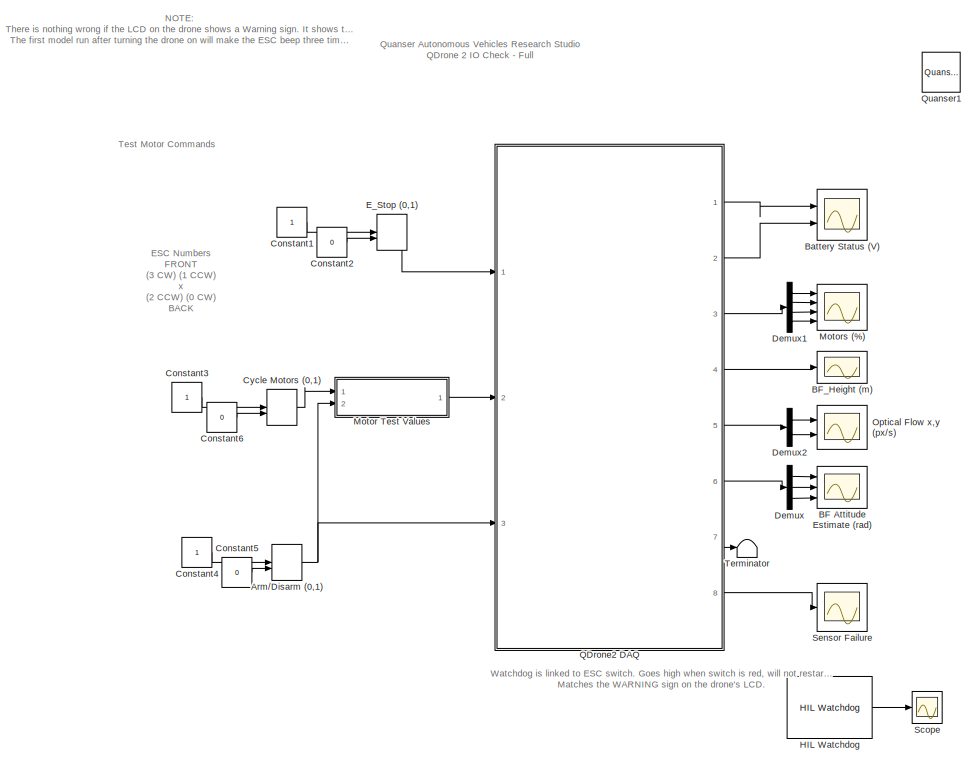
[diagram: root canvas - part 1/2, right side, full height]
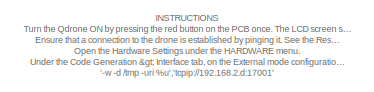
[diagram: root canvas - part 2/2, top left region]
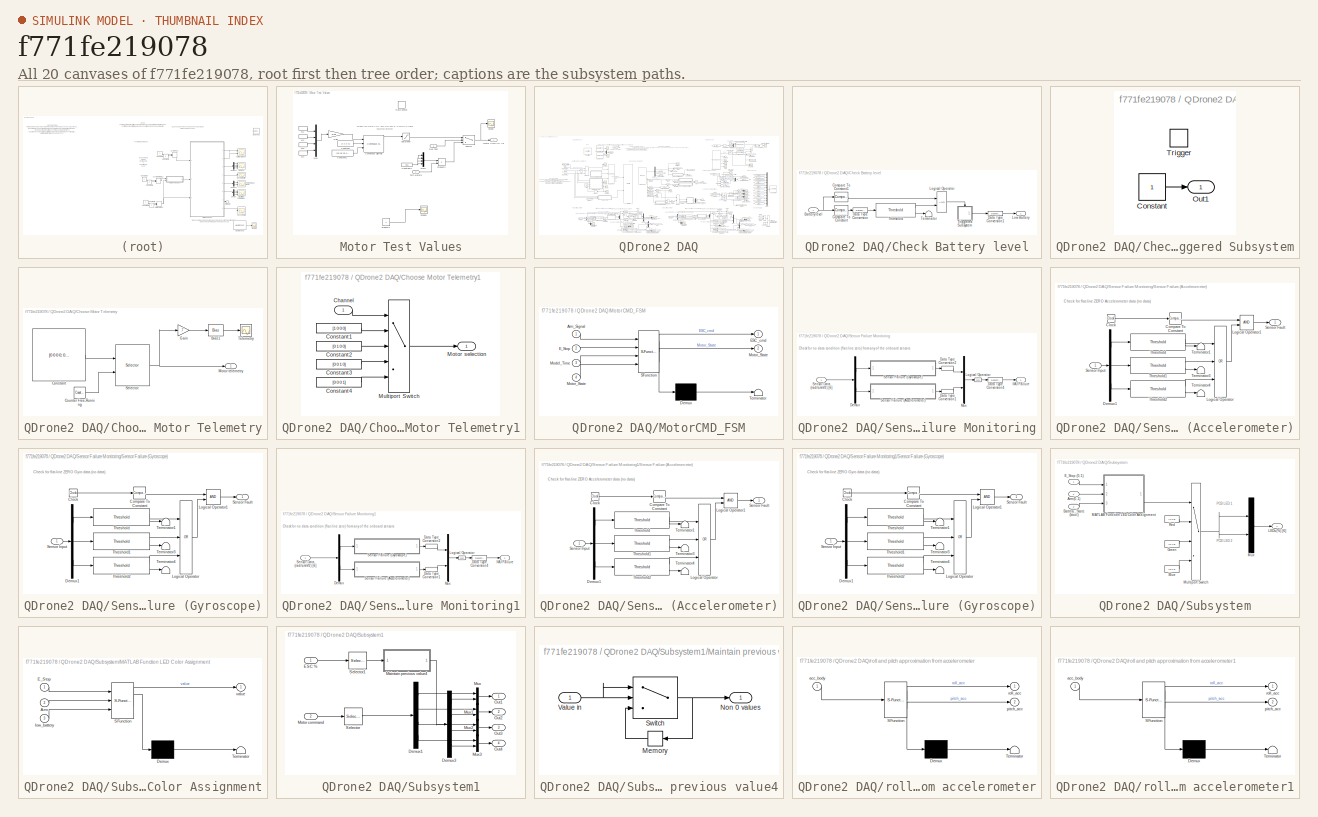
[diagram: thumbnail index - all 20 canvases of the model, root first then tree order]
MODEL slx_f771fe219078
KIND model
CONFIG AbsTol = auto
CONFIG EnableMultiTasking = on
CONFIG FixedStep = 0.002
CONFIG MaxStep = auto
CONFIG MinStep = auto
CONFIG RelTol = 1e-3
CONFIG SampleTimeConstraint = Unconstrained
CONFIG SolverName = ode2
CONFIG StartTime = 0.0
CONFIG StopTime = inf
BLOCK [ManualSwitch] Arm//Disarm (0,1)
  CurrentSetting = 0
  InitFcn = set_param(gcb,'sw','0')
BLOCK [Scope] BF Attitude Estimate (rad) 
  Floating = off
  NumInputPorts = 3
  Ports = [3]
  ScopeSpecificationString = Simulink.scopes.TimeScopeBlockCfg('CurrentConfiguration', extmgr.ConfigurationSet(extmgr.Configuration('Core','General UI',true),extmgr.Configuration('Core','Source UI',true),extmgr.Configuration('Sources','WiredSimulink',true,'DataLoggingVariableName','ScopeData1','DataLoggingSaveFormat','Array','DataLoggingDecimation','1','DataLoggingDecimateData',true),extmgr.Configuration('Visuals','Time Domai...<+3142ch>
BLOCK [Scope] BF_Height (m)
  Floating = off
  NumInputPorts = 1
  Ports = [1]
  ScopeSpecificationString = Simulink.scopes.TimeScopeBlockCfg('CurrentConfiguration', extmgr.ConfigurationSet(extmgr.Configuration('Core','General UI',true),extmgr.Configuration('Core','Source UI',true),extmgr.Configuration('Sources','WiredSimulink',true,'DataLoggingVariableName','ScopeData2'),extmgr.Configuration('Visuals','Time Domain',true,'SerializedDisplays',{struct('MinYLimReal','0','MaxYLimReal','1.5','YLabelReal','',...<+1423ch>
BLOCK [Scope] Battery Status (V)
  Floating = off
  NumInputPorts = 2
  Ports = [2]
  ScopeSpecificationString = Simulink.scopes.TimeScopeBlockCfg('CurrentConfiguration', extmgr.ConfigurationSet(extmgr.Configuration('Core','General UI',true),extmgr.Configuration('Core','Source UI',true),extmgr.Configuration('Sources','WiredSimulink',true),extmgr.Configuration('Visuals','Time Domain',true,'SerializedDisplays',{struct('MinYLimReal','-1.00000','MaxYLimReal','1.00000','YLabelReal','','MinYLimMag','0.00000','MaxY...<+2019ch>
BLOCK [Constant] Constant1
BLOCK [Constant] Constant2
  Value = 0
BLOCK [Constant] Constant3
BLOCK [Constant] Constant4
BLOCK [Constant] Constant5
  Value = 0
BLOCK [Constant] Constant6
  Value = 0
BLOCK [ManualSwitch] Cycle Motors (0,1)
  CurrentSetting = 0
  InitFcn = set_param(gcb,'sw','0')
BLOCK [Demux] Demux
  Outputs = 3
  Ports = [1, 3]
BLOCK [Demux] Demux1
  Ports = [1, 4]
BLOCK [Demux] Demux2
  Outputs = 2
  Ports = [1, 2]
BLOCK [ManualSwitch] E_Stop (0,1)
  CurrentSetting = 0
BLOCK [Reference] HIL Watchdog  REF=quarc_library/Data Acquisition/Generic/Watchdog/HIL Watchdog
  AttributesFormatString = (%<object_name>)
  Ports = [0, 1]
  SourceBlock = quarc_library/Data Acquisition/Generic/Watchdog/HIL Watchdog
  SourceProductName = QUARC Targets
  SourceType = HIL Watchdog
  UserDataPersistent = on
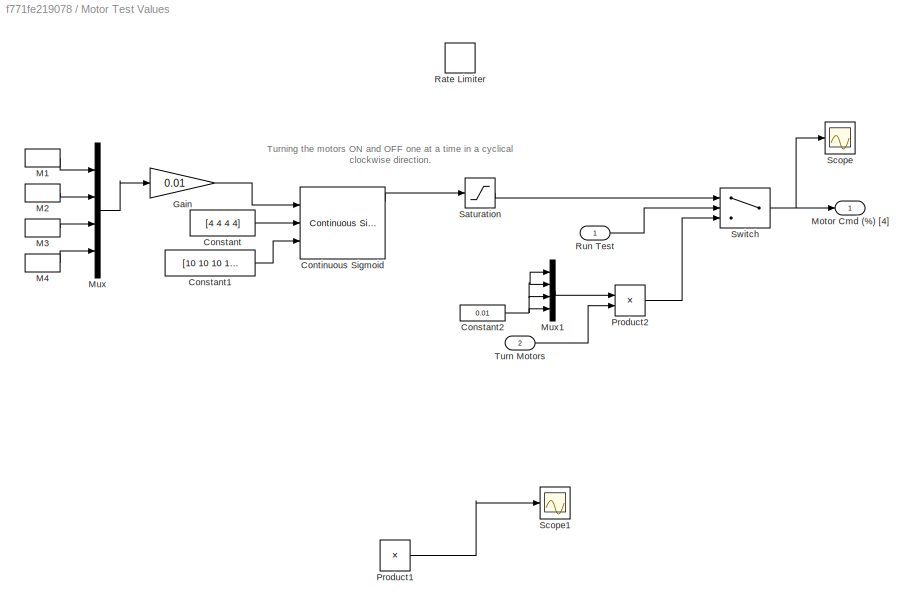
BLOCK [SubSystem] Motor Test Values
  NameLocation = top
  Ports = [2, 1]
  RequestExecContextInheritance = off
BLOCK [Constant] Motor Test Values/Constant
  Value = [4 4 4 4]
BLOCK [Constant] Motor Test Values/Constant1
  Value = [10 10 10 10]
BLOCK [Constant] Motor Test Values/Constant2
  Value = 0.01
BLOCK [Reference] Motor Test Values/Continuous Sigmoid  REF=quarc_library/Sources/Sigmoids/Continuous Sigmoid
  Ports = [3, 4]
  SourceBlock = quarc_library/Sources/Sigmoids/Continuous Sigmoid
  SourceProductName = QUARC Targets
  SourceType = Continuous Sigmoid
BLOCK [Gain] Motor Test Values/Gain
  Gain = 0.01
BLOCK [DiscretePulseGenerator] Motor Test Values/M1
  Period = 8
  Ports = [0, 1]
  PulseType = Time based
  PulseWidth = 12.5
BLOCK [DiscretePulseGenerator] Motor Test Values/M2
  Period = 8
  PhaseDelay = 6
  Ports = [0, 1]
  PulseType = Time based
  PulseWidth = 12.5
BLOCK [DiscretePulseGenerator] Motor Test Values/M3
  Period = 8
  PhaseDelay = 2
  Ports = [0, 1]
  PulseType = Time based
  PulseWidth = 12.5
BLOCK [DiscretePulseGenerator] Motor Test Values/M4
  Period = 8
  PhaseDelay = 4
  Ports = [0, 1]
  PulseType = Time based
  PulseWidth = 12.5
BLOCK [Outport] Motor Test Values/Motor Cmd (%) [4]
  VectorParamsAs1DForOutWhenUnconnected = off
BLOCK [Mux] Motor Test Values/Mux
  DisplayOption = bar
  Ports = [4, 1]
BLOCK [Mux] Motor Test Values/Mux1
  DisplayOption = bar
  Ports = [4, 1]
BLOCK [Product] Motor Test Values/Product1
  Commented = on
  Ports = [2, 1]
BLOCK [Product] Motor Test Values/Product2
  Ports = [2, 1]
BLOCK [RateLimiter] Motor Test Values/Rate Limiter
  Commented = on
  FallingSlewLimit = -0.1
  RisingSlewLimit = 0.1
  SampleTimeMode = inherited
BLOCK [Inport] Motor Test Values/Run Test
BLOCK [Saturate] Motor Test Values/Saturation
  LowerLimit = 0
  UpperLimit = 0.1
BLOCK [Scope] Motor Test Values/Scope
  Floating = off
  NumInputPorts = 1
  Ports = [1]
  ScopeSpecificationString = Simulink.scopes.TimeScopeBlockCfg('CurrentConfiguration', extmgr.ConfigurationSet(extmgr.Configuration('Core','General UI',true),extmgr.Configuration('Core','Source UI',true),extmgr.Configuration('Sources','WiredSimulink',true,'DataLoggingVariableName','ScopeData1'),extmgr.Configuration('Visuals','Time Domain',true,'SerializedDisplays',{struct('MinYLimReal','-0.00125','MaxYLimReal','0.01125','YLab...<+1429ch>
BLOCK [Scope] Motor Test Values/Scope1
  Commented = on
  Floating = off
  NumInputPorts = 1
  Ports = [1]
  ScopeSpecificationString = Simulink.scopes.TimeScopeBlockCfg('CurrentConfiguration', extmgr.ConfigurationSet(extmgr.Configuration('Core','General UI',true),extmgr.Configuration('Core','Source UI',true),extmgr.Configuration('Sources','WiredSimulink',true,'DataLoggingVariableName','ScopeData2'),extmgr.Configuration('Visuals','Time Domain',true,'SerializedDisplays',{struct('MinYLimReal','-0.0025','MaxYLimReal','0.0225','YLabel...<+1454ch>
BLOCK [Switch] Motor Test Values/Switch
  Criteria = u2 > Threshold
  InputSameDT = off
  SaturateOnIntegerOverflow = off
BLOCK [Inport] Motor Test Values/Turn Motors
  Port = 2
BLOCK [Scope] Motors (%)
  Floating = off
  NumInputPorts = 4
  Ports = [4]
  ScopeSpecificationString = Simulink.scopes.TimeScopeBlockCfg('CurrentConfiguration', extmgr.ConfigurationSet(extmgr.Configuration('Core','General UI',true),extmgr.Configuration('Core','Source UI',true),extmgr.Configuration('Sources','WiredSimulink',true,'DataLoggingVariableName','ScopeData2'),extmgr.Configuration('Visuals','Time Domain',true,'SerializedDisplays',{struct('MinYLimReal','-0.01681','MaxYLimReal','0.1513','YLabe...<+3804ch>
BLOCK [Scope] Optical Flow x,y (px//s)
  Floating = off
  NumInputPorts = 2
  Ports = [2]
  ScopeSpecificationString = Simulink.scopes.TimeScopeBlockCfg('CurrentConfiguration', extmgr.ConfigurationSet(extmgr.Configuration('Core','General UI',true),extmgr.Configuration('Core','Source UI',true),extmgr.Configuration('Sources','WiredSimulink',true,'DataLoggingVariableName','ScopeData4'),extmgr.Configuration('Visuals','Time Domain',true,'SerializedDisplays',{struct('MinYLimReal','-1094.93542','MaxYLimReal','1121.71199'...<+2088ch>
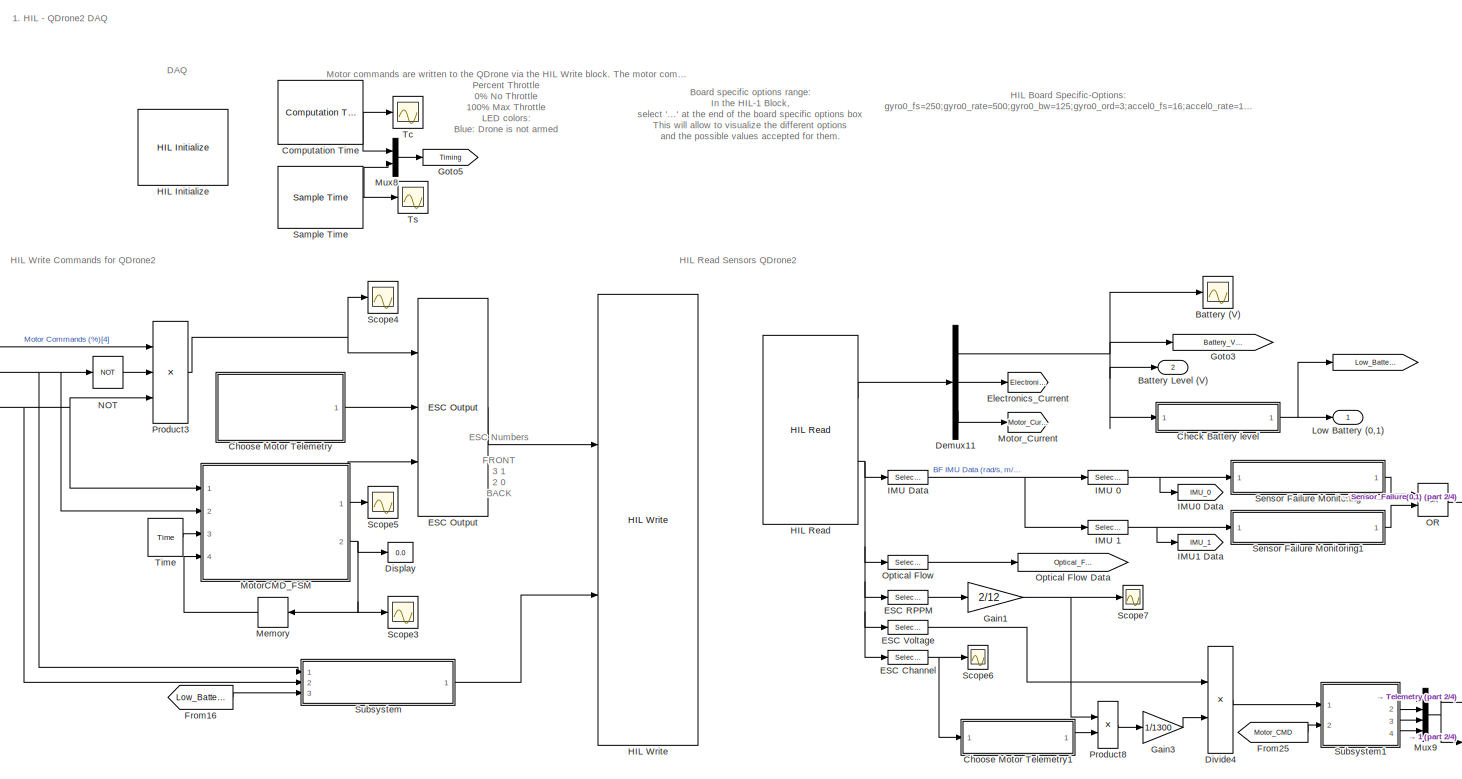
[diagram: QDrone2 DAQ - part 1/4, central region]
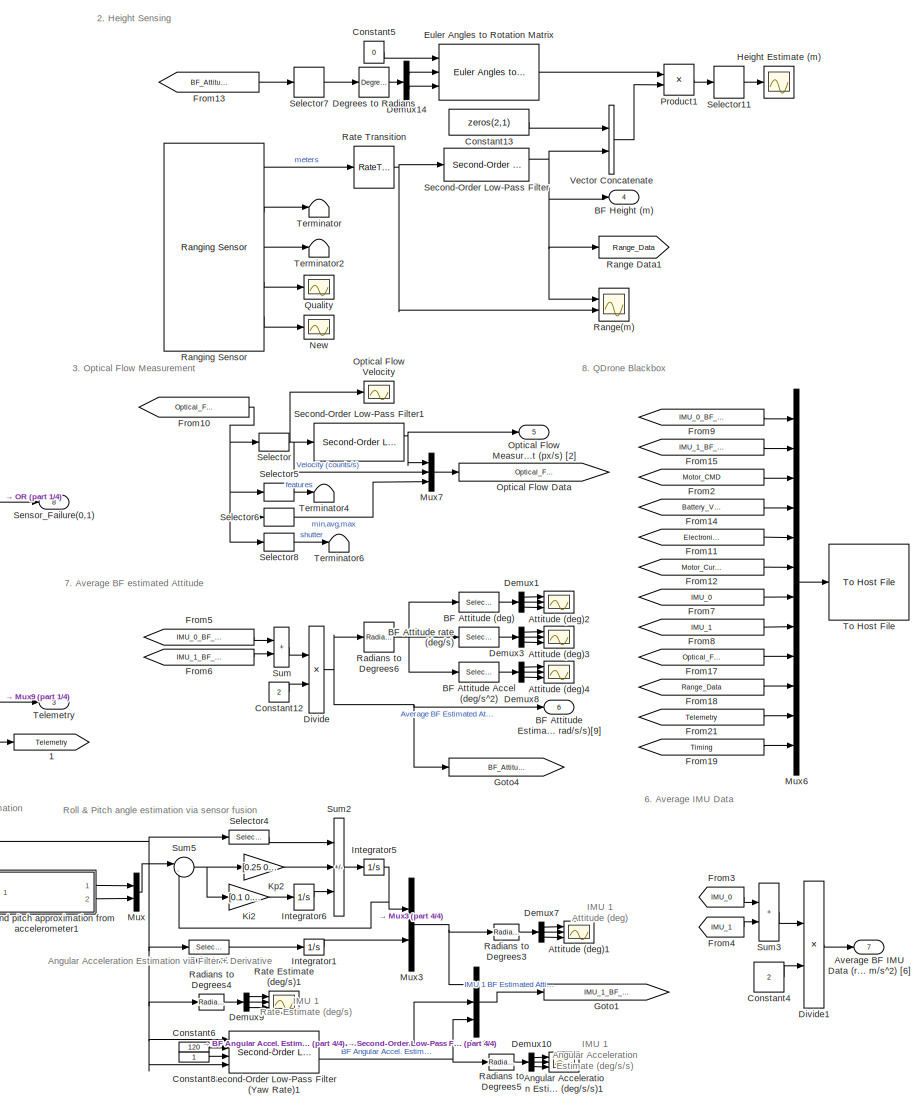
[diagram: QDrone2 DAQ - part 2/4, right side, full height]
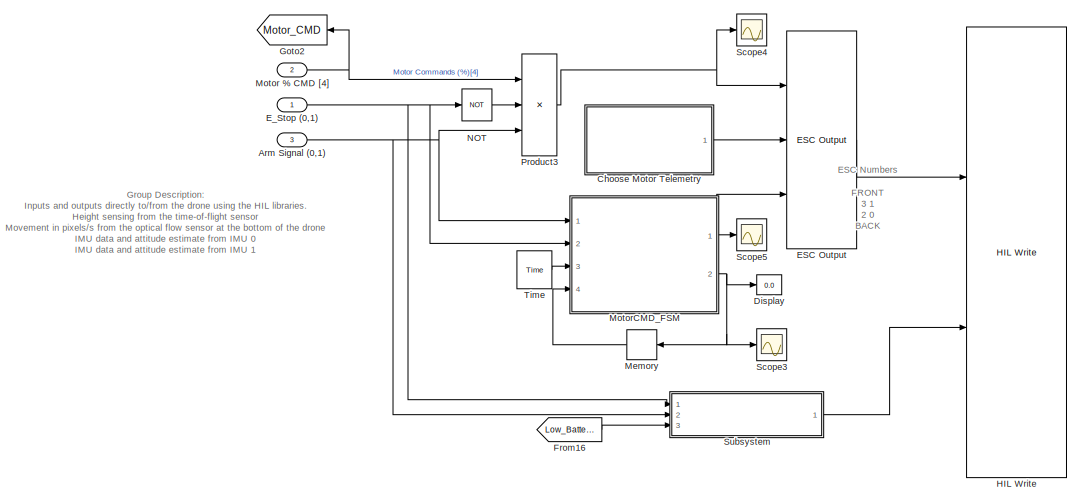
[diagram: QDrone2 DAQ - part 3/4, middle left region]
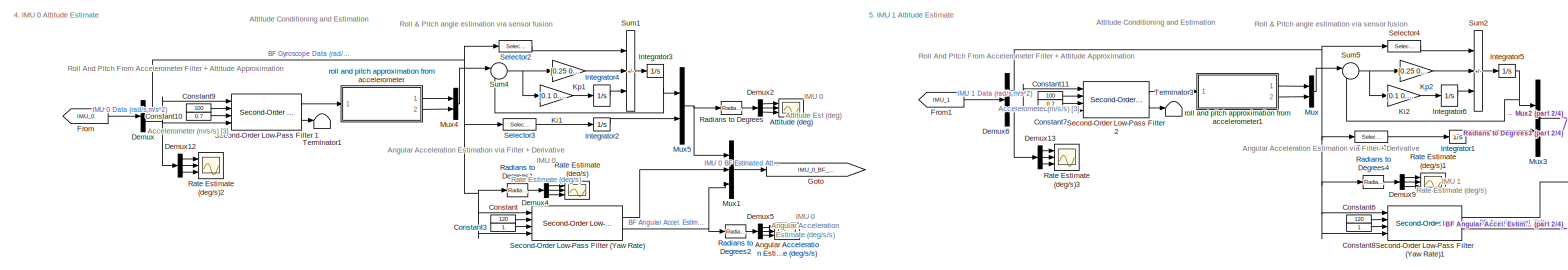
[diagram: QDrone2 DAQ - part 4/4, bottom center region]
BLOCK [SubSystem] QDrone2 DAQ
  Ports = [3, 8]
  RequestExecContextInheritance = off
BLOCK [Goto] QDrone2 DAQ/ 
  GotoTag = Low_Battery
BLOCK [Goto] QDrone2 DAQ/ 1
  GotoTag = Telemetry
BLOCK [Scope] QDrone2 DAQ/Angular Acceleration Estimate (deg//s//s)
  Floating = off
  NumInputPorts = 3
  Ports = [3]
  ScopeSpecificationString = Simulink.scopes.TimeScopeBlockCfg('CurrentConfiguration', extmgr.ConfigurationSet(extmgr.Configuration('Core','General UI',true),extmgr.Configuration('Core','Source UI',true),extmgr.Configuration('Sources','WiredSimulink',true,'DataLoggingVariableName','ScopeData11','DataLoggingLimitDataPoints',true,'DataLoggingSaveFormat','Array','DataLoggingDecimation','1','DataLoggingDecimateData',true),extmgr....<+2838ch>
BLOCK [Scope] QDrone2 DAQ/Angular Acceleration Estimate (deg//s//s)1
  Floating = off
  NumInputPorts = 3
  Ports = [3]
  ScopeSpecificationString = Simulink.scopes.TimeScopeBlockCfg('CurrentConfiguration', extmgr.ConfigurationSet(extmgr.Configuration('Core','General UI',true),extmgr.Configuration('Core','Source UI',true),extmgr.Configuration('Sources','WiredSimulink',true,'DataLoggingVariableName','ScopeData12','DataLoggingLimitDataPoints',true,'DataLoggingSaveFormat','Array','DataLoggingDecimation','1','DataLoggingDecimateData',true),extmgr....<+2838ch>
BLOCK [Inport] QDrone2 DAQ/Arm Signal (0,1)
  Port = 3
BLOCK [Scope] QDrone2 DAQ/Attitude (deg)
  Floating = off
  NumInputPorts = 3
  Ports = [3]
  ScopeSpecificationString = Simulink.scopes.TimeScopeBlockCfg('CurrentConfiguration', extmgr.ConfigurationSet(extmgr.Configuration('Core','General UI',true),extmgr.Configuration('Core','Source UI',true),extmgr.Configuration('Sources','WiredSimulink',true,'DataLoggingVariableName','ScopeData13','DataLoggingSaveFormat','Array','DataLoggingDecimation','1','DataLoggingDecimateData',true),extmgr.Configuration('Visuals','Time Doma...<+2851ch>
BLOCK [Scope] QDrone2 DAQ/Attitude (deg)1
  Floating = off
  NumInputPorts = 3
  Ports = [3]
  ScopeSpecificationString = Simulink.scopes.TimeScopeBlockCfg('CurrentConfiguration', extmgr.ConfigurationSet(extmgr.Configuration('Core','General UI',true),extmgr.Configuration('Core','Source UI',true),extmgr.Configuration('Sources','WiredSimulink',true,'DataLoggingVariableName','ScopeData14','DataLoggingSaveFormat','Array','DataLoggingDecimation','1','DataLoggingDecimateData',true),extmgr.Configuration('Visuals','Time Doma...<+2825ch>
BLOCK [Scope] QDrone2 DAQ/Attitude (deg)2
  Floating = off
  NumInputPorts = 3
  Ports = [3]
  ScopeSpecificationString = Simulink.scopes.TimeScopeBlockCfg('CurrentConfiguration', extmgr.ConfigurationSet(extmgr.Configuration('Core','General UI',true),extmgr.Configuration('Core','Source UI',true),extmgr.Configuration('Sources','WiredSimulink',true,'DataLoggingVariableName','ScopeData15','DataLoggingSaveFormat','Array','DataLoggingDecimation','1','DataLoggingDecimateData',true),extmgr.Configuration('Visuals','Time Doma...<+2844ch>
BLOCK [Scope] QDrone2 DAQ/Attitude (deg)3
  Floating = off
  NumInputPorts = 3
  Ports = [3]
  ScopeSpecificationString = Simulink.scopes.TimeScopeBlockCfg('CurrentConfiguration', extmgr.ConfigurationSet(extmgr.Configuration('Core','General UI',true),extmgr.Configuration('Core','Source UI',true),extmgr.Configuration('Sources','WiredSimulink',true,'DataLoggingVariableName','ScopeData16','DataLoggingSaveFormat','Array','DataLoggingDecimation','1','DataLoggingDecimateData',true),extmgr.Configuration('Visuals','Time Doma...<+2868ch>
BLOCK [Scope] QDrone2 DAQ/Attitude (deg)4
  Floating = off
  NumInputPorts = 3
  Ports = [3]
  ScopeSpecificationString = Simulink.scopes.TimeScopeBlockCfg('CurrentConfiguration', extmgr.ConfigurationSet(extmgr.Configuration('Core','General UI',true),extmgr.Configuration('Core','Source UI',true),extmgr.Configuration('Sources','WiredSimulink',true,'DataLoggingVariableName','ScopeData17','DataLoggingSaveFormat','Array','DataLoggingDecimation','1','DataLoggingDecimateData',true),extmgr.Configuration('Visuals','Time Doma...<+2874ch>
BLOCK [Outport] QDrone2 DAQ/Average BF IMU Data (rad//s, m//s^2) [6]
  Port = 7
BLOCK [Selector] QDrone2 DAQ/BF Attitude (deg)
  IndexOptions = Index vector (dialog)
  Indices = [1:3]
  InputPortWidth = 9
  OutputSizes = 1
  Ports = [1, 1]
BLOCK [Selector] QDrone2 DAQ/BF Attitude Accel (deg//s^2)
  IndexOptions = Index vector (dialog)
  Indices = [7:9]
  InputPortWidth = 9
  OutputSizes = 1
  Ports = [1, 1]
BLOCK [Outport] QDrone2 DAQ/BF Attitude Estimate (rad, rad//s, rad//s//s)[9]
  Port = 6
BLOCK [Selector] QDrone2 DAQ/BF Attitude rate (deg//s)
  IndexOptions = Index vector (dialog)
  Indices = [4:6]
  InputPortWidth = 9
  OutputSizes = 1
  Ports = [1, 1]
BLOCK [Outport] QDrone2 DAQ/BF Height (m) 
  Port = 4
BLOCK [Scope] QDrone2 DAQ/Battery (V)
  Floating = off
  NumInputPorts = 1
  Ports = [1]
  ScopeSpecificationString = Simulink.scopes.TimeScopeBlockCfg('CurrentConfiguration', extmgr.ConfigurationSet(extmgr.Configuration('Core','General UI',true),extmgr.Configuration('Core','Source UI',true),extmgr.Configuration('Sources','WiredSimulink',true,'DataLoggingVariableName','ScopeData1'),extmgr.Configuration('Visuals','Time Domain',true,'SerializedDisplays',{struct('MinYLimReal','13.04642','MaxYLimReal','18.70722','YLa...<+1438ch>
BLOCK [Outport] QDrone2 DAQ/Battery Level (V)
  Port = 2
BLOCK [SubSystem] QDrone2 DAQ/Check Battery level
  Ports = [1, 1]
  RequestExecContextInheritance = off
BLOCK [Inport] QDrone2 DAQ/Check Battery level/Battery level
BLOCK [Reference] QDrone2 DAQ/Check Battery level/Compare To Constant  REF=simulink/Logic and Bit
Operations/Compare
To Constant
  Ports = [1, 1]
  SourceBlock = simulink/Logic and Bit\nOperations/Compare\nTo Constant
  SourceProductBaseCode = SL
  SourceType = Compare To Constant
BLOCK [Reference] QDrone2 DAQ/Check Battery level/Compare To Constant1  REF=simulink/Logic and Bit
Operations/Compare
To Constant
  Ports = [1, 1]
  SourceBlock = simulink/Logic and Bit\nOperations/Compare\nTo Constant
  SourceProductBaseCode = SL
  SourceType = Compare To Constant
BLOCK [DataTypeConversion] QDrone2 DAQ/Check Battery level/Data Type Conversion
  RndMeth = Floor
  SaturateOnIntegerOverflow = off
BLOCK [DataTypeConversion] QDrone2 DAQ/Check Battery level/Data Type Conversion1
  RndMeth = Floor
  SaturateOnIntegerOverflow = off
BLOCK [Logic] QDrone2 DAQ/Check Battery level/Logical Operator
  AllPortsSameDT = off
  OutDataTypeStr = boolean
  Ports = [2, 1]
BLOCK [Outport] QDrone2 DAQ/Check Battery level/Low Battery
  VectorParamsAs1DForOutWhenUnconnected = off
BLOCK [Terminator] QDrone2 DAQ/Check Battery level/Terminator
BLOCK [Reference] QDrone2 DAQ/Check Battery level/Threshold  REF=quarc_library/Discontinuities/Threshold
  Ports = [1, 2]
  SourceBlock = quarc_library/Discontinuities/Threshold
  SourceProductName = QUARC Targets
  SourceType = Threshold
BLOCK [SubSystem] QDrone2 DAQ/Check Battery level/Triggered Subsystem
  Ports = [0, 1, 0, 1]
  RequestExecContextInheritance = off
  TreatAsAtomicUnit = on
BLOCK [Constant] QDrone2 DAQ/Check Battery level/Triggered Subsystem/Constant
BLOCK [Outport] QDrone2 DAQ/Check Battery level/Triggered Subsystem/Out1
  InitialOutput = [0]
BLOCK [TriggerPort] QDrone2 DAQ/Check Battery level/Triggered Subsystem/Trigger
  Ports = []
  StatesWhenEnabling = held
  VariantControl = (inherit)
BLOCK [SubSystem] QDrone2 DAQ/Choose Motor Telemetry
  Ports = [0, 1]
  RequestExecContextInheritance = off
BLOCK [Bias] QDrone2 DAQ/Choose Motor Telemetry/Bias1
  Bias = 0:3
  SaturateOnIntegerOverflow = off
BLOCK [Constant] QDrone2 DAQ/Choose Motor Telemetry/Constant
  Value = [0 0 0 0; 0 0 0 1; 0 0 0 0; 0 0 1 0; 0 0 0 0; 0 1 0 0; 0 0 0 0; 1 0 0 0]
BLOCK [Reference] QDrone2 DAQ/Choose Motor Telemetry/Counter Free-Running  REF=simulink/Sources/Counter
Free-Running
  Ports = [0, 1]
  SourceBlock = simulink/Sources/Counter\nFree-Running
  SourceProductBaseCode = SL
  SourceType = Counter Free-Running
BLOCK [Gain] QDrone2 DAQ/Choose Motor Telemetry/Gain
  Gain = .7
BLOCK [Outport] QDrone2 DAQ/Choose Motor Telemetry/Motor telemetry
BLOCK [Selector] QDrone2 DAQ/Choose Motor Telemetry/Selector
  IndexMode = Zero-based
  IndexOptions = Index vector (port),Select all
  Indices = [1 3],1
  InputPortWidth = 3
  NumberOfDimensions = 2
  OutputSizes = 1,1
  Ports = [2, 1]
BLOCK [Scope] QDrone2 DAQ/Choose Motor Telemetry/Telemetry
  Floating = off
  NumInputPorts = 1
  Ports = [1]
  ScopeSpecificationString = Simulink.scopes.TimeScopeBlockCfg('CurrentConfiguration', extmgr.ConfigurationSet(extmgr.Configuration('Core','General UI',true),extmgr.Configuration('Core','Source UI',true),extmgr.Configuration('Sources','WiredSimulink',true,'DataLoggingVariableName','ScopeData2'),extmgr.Configuration('Visuals','Time Domain',true,'SerializedDisplays',{struct('MinYLimReal','-0.4625','MaxYLimReal','4.1625','YLabel...<+1629ch>
BLOCK [SubSystem] QDrone2 DAQ/Choose Motor Telemetry1
  Ports = [1, 1]
  RequestExecContextInheritance = off
BLOCK [Inport] QDrone2 DAQ/Choose Motor Telemetry1/Channel
BLOCK [Constant] QDrone2 DAQ/Choose Motor Telemetry1/Constant1
  Value = [1 0 0 0]
BLOCK [Constant] QDrone2 DAQ/Choose Motor Telemetry1/Constant2
  Value = [0 1 0 0]
BLOCK [Constant] QDrone2 DAQ/Choose Motor Telemetry1/Constant3
  Value = [0 0 1 0]
BLOCK [Constant] QDrone2 DAQ/Choose Motor Telemetry1/Constant4
  Value = [0 0 0 1]
BLOCK [Outport] QDrone2 DAQ/Choose Motor Telemetry1/Motor selection
BLOCK [MultiPortSwitch] QDrone2 DAQ/Choose Motor Telemetry1/Multiport Switch
  DataPortOrder = Zero-based contiguous
  InputSameDT = off
  Inputs = 4
  Ports = [5, 1]
  SaturateOnIntegerOverflow = off
  zeroidx = on
BLOCK [Reference] QDrone2 DAQ/Computation Time  REF=quarc_library/Sources/Time/Computation Time
  Ports = [0, 1]
  SourceBlock = quarc_library/Sources/Time/Computation Time
  SourceProductName = QUARC Targets
  SourceType = Computation Time
BLOCK [Constant] QDrone2 DAQ/Constant
  Value = 120
BLOCK [Constant] QDrone2 DAQ/Constant10
  Value = 0.7
BLOCK [Constant] QDrone2 DAQ/Constant11
  Value = 100
BLOCK [Constant] QDrone2 DAQ/Constant12
  Value = 2
BLOCK [Constant] QDrone2 DAQ/Constant13
  Value = zeros(2,1)
BLOCK [Constant] QDrone2 DAQ/Constant3
BLOCK [Constant] QDrone2 DAQ/Constant4
  Value = 2
BLOCK [Constant] QDrone2 DAQ/Constant5
  Value = 0
BLOCK [Constant] QDrone2 DAQ/Constant6
  Value = 120
BLOCK [Constant] QDrone2 DAQ/Constant7
  Value = 0.7
BLOCK [Constant] QDrone2 DAQ/Constant8
BLOCK [Constant] QDrone2 DAQ/Constant9
  Value = 100
BLOCK [Reference] QDrone2 DAQ/Degrees to Radians  REF=simulink_extras/Transformations/Degrees to
Radians
  Ports = [1, 1]
  SourceBlock = simulink_extras/Transformations/Degrees to\nRadians
  SourceProductBaseCode = SL
  SourceType = DegreesToRadians
BLOCK [Demux] QDrone2 DAQ/Demux
  Outputs = [3,3]
  Ports = [1, 2]
BLOCK [Demux] QDrone2 DAQ/Demux1
  Outputs = 3
  Ports = [1, 3]
BLOCK [Demux] QDrone2 DAQ/Demux10
  Outputs = 3
  Ports = [1, 3]
BLOCK [Demux] QDrone2 DAQ/Demux11
  Outputs = 3
  Ports = [1, 3]
BLOCK [Demux] QDrone2 DAQ/Demux12
  Outputs = 3
  Ports = [1, 3]
BLOCK [Demux] QDrone2 DAQ/Demux13
  Outputs = 3
  Ports = [1, 3]
BLOCK [Demux] QDrone2 DAQ/Demux14
  Outputs = 2
  Ports = [1, 2]
BLOCK [Demux] QDrone2 DAQ/Demux2
  Outputs = 3
  Ports = [1, 3]
BLOCK [Demux] QDrone2 DAQ/Demux3
  Outputs = 3
  Ports = [1, 3]
BLOCK [Demux] QDrone2 DAQ/Demux4
  Outputs = 3
  Ports = [1, 3]
BLOCK [Demux] QDrone2 DAQ/Demux5
  Outputs = 3
  Ports = [1, 3]
BLOCK [Demux] QDrone2 DAQ/Demux6
  Outputs = [3,3]
  Ports = [1, 2]
BLOCK [Demux] QDrone2 DAQ/Demux7
  Outputs = 3
  Ports = [1, 3]
BLOCK [Demux] QDrone2 DAQ/Demux8
  Outputs = 3
  Ports = [1, 3]
BLOCK [Demux] QDrone2 DAQ/Demux9
  Outputs = 3
  Ports = [1, 3]
BLOCK [Display] QDrone2 DAQ/Display
  Decimation = 1
  Ports = [1]
BLOCK [Product] QDrone2 DAQ/Divide
  Inputs = */
  Ports = [2, 1]
BLOCK [Product] QDrone2 DAQ/Divide1
  Inputs = */
  Ports = [2, 1]
BLOCK [Product] QDrone2 DAQ/Divide4
  Inputs = /*
  Ports = [2, 1]
BLOCK [Selector] QDrone2 DAQ/ESC Channel
  IndexOptions = Index vector (dialog)
  Indices = [22]
  InputPortWidth = 22
  OutputSizes = 1
  Ports = [1, 1]
BLOCK [Reference] QDrone2 DAQ/ESC Output  REF=quarc_library/Data Acquisition/Generic/Transformations/ESC Output
  AttributesFormatString = %<protocol>
  Ports = [3, 1]
  SourceBlock = quarc_library/Data Acquisition/Generic/Transformations/ESC Output
  SourceProductName = QUARC Targets
  SourceType = ESC Output
  UserDataPersistent = on
BLOCK [Selector] QDrone2 DAQ/ESC RPPM
  IndexOptions = Index vector (dialog)
  Indices = [20]
  InputPortWidth = 22
  OutputSizes = 1
  Ports = [1, 1]
BLOCK [Selector] QDrone2 DAQ/ESC Voltage
  IndexOptions = Index vector (dialog)
  Indices = [21]
  InputPortWidth = 22
  OutputSizes = 1
  Ports = [1, 1]
BLOCK [Inport] QDrone2 DAQ/E_Stop (0,1)
BLOCK [Goto] QDrone2 DAQ/Electronics_Current
  GotoTag = Electronics_Current
BLOCK [Reference] QDrone2 DAQ/Euler Angles to Rotation Matrix  REF=quarc_library/Math Operations/Matrices/Euler Angles to
Rotation Matrix
  Ports = [3, 1]
  SourceBlock = quarc_library/Math Operations/Matrices/Euler Angles to\nRotation Matrix
  SourceProductName = QUARC Targets
  SourceType = Euler Angles to Rotation Matrix
BLOCK [From] QDrone2 DAQ/From
  GotoTag = IMU_0
BLOCK [From] QDrone2 DAQ/From1
  GotoTag = IMU_1
BLOCK [From] QDrone2 DAQ/From10
  GotoTag = Optical_Flow_Data
BLOCK [From] QDrone2 DAQ/From11
  GotoTag = Electronics_Current
BLOCK [From] QDrone2 DAQ/From12
  GotoTag = Motor_Current
BLOCK [From] QDrone2 DAQ/From13
  GotoTag = BF_Attitude_Est
BLOCK [From] QDrone2 DAQ/From14
  GotoTag = Battery_Voltage
BLOCK [From] QDrone2 DAQ/From15
  GotoTag = IMU_1_BF_Est_Att
BLOCK [From] QDrone2 DAQ/From16
  GotoTag = Low_Battery
BLOCK [From] QDrone2 DAQ/From17
  GotoTag = Optical_Flow_X_Y_Est
BLOCK [From] QDrone2 DAQ/From18
  GotoTag = Range_Data
BLOCK [From] QDrone2 DAQ/From19
  GotoTag = Timing
BLOCK [From] QDrone2 DAQ/From2
  GotoTag = Motor_CMD
BLOCK [From] QDrone2 DAQ/From21
  GotoTag = Telemetry
BLOCK [From] QDrone2 DAQ/From25
  GotoTag = Motor_CMD
BLOCK [From] QDrone2 DAQ/From3
  GotoTag = IMU_0
BLOCK [From] QDrone2 DAQ/From4
  GotoTag = IMU_1
BLOCK [From] QDrone2 DAQ/From5
  GotoTag = IMU_0_BF_Est_Att
BLOCK [From] QDrone2 DAQ/From6
  GotoTag = IMU_1_BF_Est_Att
BLOCK [From] QDrone2 DAQ/From7
  GotoTag = IMU_0
BLOCK [From] QDrone2 DAQ/From8
  GotoTag = IMU_1
BLOCK [From] QDrone2 DAQ/From9
  GotoTag = IMU_0_BF_Est_Att
BLOCK [Gain] QDrone2 DAQ/Gain1
  Gain = 2/12
BLOCK [Gain] QDrone2 DAQ/Gain3
  Gain = 1/1300
BLOCK [Goto] QDrone2 DAQ/Goto
  GotoTag = IMU_0_BF_Est_Att
BLOCK [Goto] QDrone2 DAQ/Goto1
  GotoTag = IMU_1_BF_Est_Att
BLOCK [Goto] QDrone2 DAQ/Goto2
  GotoTag = Motor_CMD
  NameLocation = top
BLOCK [Goto] QDrone2 DAQ/Goto3
  GotoTag = Battery_Voltage
BLOCK [Goto] QDrone2 DAQ/Goto4
  GotoTag = BF_Attitude_Est
BLOCK [Goto] QDrone2 DAQ/Goto5
  GotoTag = Timing
BLOCK [Reference] QDrone2 DAQ/HIL Initialize  REF=quarc_library/Data Acquisition/Generic/Configuration/HIL Initialize
  AttributesFormatString = %<object_name> (%<board_type>-%<board_number>)
  Ports = []
  SourceBlock = quarc_library/Data Acquisition/Generic/Configuration/HIL Initialize
  SourceProductName = QUARC Targets
  SourceType = HIL Initialize
  UserDataPersistent = on
BLOCK [Reference] QDrone2 DAQ/HIL Read  REF=quarc_library/Data Acquisition/Generic/Immediate I//O/HIL Read
  AttributesFormatString = (%<object_name>)
  Ports = [0, 2]
  SourceBlock = quarc_library/Data Acquisition/Generic/Immediate I//O/HIL Read
  SourceProductName = QUARC Targets
  SourceType = HIL Read
  UserDataPersistent = on
BLOCK [Reference] QDrone2 DAQ/HIL Write  REF=quarc_library/Data Acquisition/Generic/Immediate I//O/HIL Write
  AttributesFormatString = (%<object_name>)
  Ports = [2]
  SourceBlock = quarc_library/Data Acquisition/Generic/Immediate I//O/HIL Write
  SourceProductName = QUARC Targets
  SourceType = HIL Write
  UserDataPersistent = on
BLOCK [Scope] QDrone2 DAQ/Height Estimate (m)
  Floating = off
  NumInputPorts = 1
  Ports = [1]
  ScopeSpecificationString = Simulink.scopes.TimeScopeBlockCfg('CurrentConfiguration', extmgr.ConfigurationSet(extmgr.Configuration('Core','General UI',true),extmgr.Configuration('Core','Source UI',true),extmgr.Configuration('Sources','WiredSimulink',true,'DataLoggingVariableName','ScopeData4'),extmgr.Configuration('Visuals','Time Domain',true,'SerializedDisplays',{struct('MinYLimReal','-0.22545','MaxYLimReal','2.40133','YLab...<+1438ch>
BLOCK [Selector] QDrone2 DAQ/IMU 0
  IndexOptions = Index vector (dialog)
  Indices = [1:6]
  InputPortWidth = 12
  OutputSizes = 1
  Ports = [1, 1]
BLOCK [Selector] QDrone2 DAQ/IMU 1
  IndexOptions = Index vector (dialog)
  Indices = [7:12]
  InputPortWidth = 12
  OutputSizes = 1
  Ports = [1, 1]
BLOCK [Selector] QDrone2 DAQ/IMU Data
  IndexOptions = Index vector (dialog)
  Indices = [1:12]
  InputPortWidth = 22
  OutputSizes = 1
  Ports = [1, 1]
BLOCK [Goto] QDrone2 DAQ/IMU0 Data
  GotoTag = IMU_0
BLOCK [Goto] QDrone2 DAQ/IMU1 Data
  GotoTag = IMU_1
BLOCK [Integrator] QDrone2 DAQ/Integrator1
  Ports = [1, 1]
BLOCK [Integrator] QDrone2 DAQ/Integrator2
  Ports = [1, 1]
BLOCK [Integrator] QDrone2 DAQ/Integrator3
  Ports = [1, 1]
BLOCK [Integrator] QDrone2 DAQ/Integrator4
  Ports = [1, 1]
BLOCK [Integrator] QDrone2 DAQ/Integrator5
  Ports = [1, 1]
BLOCK [Integrator] QDrone2 DAQ/Integrator6
  Ports = [1, 1]
BLOCK [Gain] QDrone2 DAQ/Ki1
  Gain = [0.1 0.1]
BLOCK [Gain] QDrone2 DAQ/Ki2
  Gain = [0.1 0.1]
BLOCK [Gain] QDrone2 DAQ/Kp1
  Gain = [0.25 0.25]
  NameLocation = top
BLOCK [Gain] QDrone2 DAQ/Kp2
  Gain = [0.25 0.25]
  NameLocation = top
BLOCK [Outport] QDrone2 DAQ/Low Battery (0,1)
BLOCK [Memory] QDrone2 DAQ/Memory
  NameLocation = top
BLOCK [Inport] QDrone2 DAQ/Motor % CMD [4]
  Port = 2
BLOCK [SubSystem] QDrone2 DAQ/MotorCMD_FSM
  ErrorFcn = Stateflow.Translate.translate
  PermitHierarchicalResolution = ExplicitOnly
  Ports = [4, 2]
  RequestExecContextInheritance = off
  SFBlockType = MATLAB Function
  TreatAsAtomicUnit = on
BLOCK [Demux] QDrone2 DAQ/MotorCMD_FSM/ Demux 
  Outputs = 1
  Ports = [1, 1]
BLOCK [S-Function] QDrone2 DAQ/MotorCMD_FSM/ SFunction 
  EnableBusSupport = on
  FunctionName = sf_sfun
  PortCounts = [4 3]
  Ports = [4, 3]
  SFcnIsStateOwnerBlock = off
  SFunctionDeploymentMode = off
  Tag = Stateflow S-Function 4
BLOCK [Terminator] QDrone2 DAQ/MotorCMD_FSM/ Terminator 
BLOCK [Inport] QDrone2 DAQ/MotorCMD_FSM/Arm_Signal
BLOCK [Outport] QDrone2 DAQ/MotorCMD_FSM/ESC_cmd
BLOCK [Inport] QDrone2 DAQ/MotorCMD_FSM/E_Stop
  Port = 2
BLOCK [Inport] QDrone2 DAQ/MotorCMD_FSM/Model_Time
  Port = 3
BLOCK [Outport] QDrone2 DAQ/MotorCMD_FSM/Motor_State
  Port = 2
BLOCK [Inport] QDrone2 DAQ/MotorCMD_FSM/Motor_State 
  Port = 4
BLOCK [Goto] QDrone2 DAQ/Motor_Current
  GotoTag = Motor_Current
BLOCK [Mux] QDrone2 DAQ/Mux
  DisplayOption = bar
  Inputs = 2
  Ports = [2, 1]
BLOCK [Mux] QDrone2 DAQ/Mux1
  DisplayOption = bar
  Inputs = 3
  Ports = [3, 1]
BLOCK [Mux] QDrone2 DAQ/Mux2
  DisplayOption = bar
  Inputs = 3
  Ports = [3, 1]
BLOCK [Mux] QDrone2 DAQ/Mux3
  DisplayOption = bar
  Inputs = 2
  Ports = [2, 1]
BLOCK [Mux] QDrone2 DAQ/Mux4
  DisplayOption = bar
  Inputs = 2
  Ports = [2, 1]
BLOCK [Mux] QDrone2 DAQ/Mux5
  DisplayOption = bar
  Inputs = 2
  Ports = [2, 1]
BLOCK [Mux] QDrone2 DAQ/Mux6
  DisplayOption = bar
  Inputs = 12
  Ports = [12, 1]
BLOCK [Mux] QDrone2 DAQ/Mux7
  DisplayOption = bar
  Inputs = 3
  Ports = [3, 1]
BLOCK [Mux] QDrone2 DAQ/Mux8
  DisplayOption = bar
  Inputs = 2
  Ports = [2, 1]
BLOCK [Mux] QDrone2 DAQ/Mux9
  DisplayOption = bar
  Ports = [4, 1]
BLOCK [Logic] QDrone2 DAQ/NOT
  AllPortsSameDT = off
  IconShape = distinctive
  Operator = NOT
  OutDataTypeStr = boolean
  Ports = [1, 1]
BLOCK [Scope] QDrone2 DAQ/New
  Floating = off
  NumInputPorts = 1
  Ports = [1]
  ScopeSpecificationString = Simulink.scopes.TimeScopeBlockCfg('CurrentConfiguration', extmgr.ConfigurationSet(extmgr.Configuration('Core','General UI',true),extmgr.Configuration('Core','Source UI',true),extmgr.Configuration('Sources','WiredSimulink',true,'DataLoggingVariableName','ScopeData5'),extmgr.Configuration('Visuals','Time Domain',true,'SerializedDisplays',{struct('MinYLimReal','-0.125','MaxYLimReal','1.125','YLabelRe...<+1392ch>
BLOCK [Logic] QDrone2 DAQ/OR
  AllPortsSameDT = off
  Operator = OR
  OutDataTypeStr = boolean
  Ports = [2, 1]
BLOCK [Selector] QDrone2 DAQ/Optical Flow
  IndexOptions = Index vector (dialog)
  Indices = [13:19]
  InputPortWidth = 22
  OutputSizes = 1
  Ports = [1, 1]
BLOCK [Goto] QDrone2 DAQ/Optical Flow Data
  GotoTag = Optical_Flow_X_Y_Est
BLOCK [Goto] QDrone2 DAQ/Optical Flow Data 
  GotoTag = Optical_Flow_Data
BLOCK [Outport] QDrone2 DAQ/Optical Flow Measurement (px//s) [2]
  Port = 5
BLOCK [Scope] QDrone2 DAQ/Optical Flow Velocity
  Floating = off
  NumInputPorts = 1
  Ports = [1]
  ScopeSpecificationString = Simulink.scopes.TimeScopeBlockCfg('CurrentConfiguration', extmgr.ConfigurationSet(extmgr.Configuration('Core','General UI',true),extmgr.Configuration('Core','Source UI',true),extmgr.Configuration('Sources','WiredSimulink',true,'DataLoggingVariableName','ScopeData9'),extmgr.Configuration('Visuals','Time Domain',true,'SerializedDisplays',{struct('MinYLimReal','-438.50806','MaxYLimReal','317.54032','...<+1500ch>
BLOCK [Product] QDrone2 DAQ/Product1
  Multiplication = Matrix(*)
  Ports = [2, 1]
BLOCK [Product] QDrone2 DAQ/Product3
  Inputs = 3
  Ports = [3, 1]
BLOCK [Product] QDrone2 DAQ/Product8
  Ports = [2, 1]
BLOCK [Scope] QDrone2 DAQ/Quality
  Floating = off
  NumInputPorts = 1
  Ports = [1]
  ScopeSpecificationString = Simulink.scopes.TimeScopeBlockCfg('CurrentConfiguration', extmgr.ConfigurationSet(extmgr.Configuration('Core','General UI',true),extmgr.Configuration('Core','Source UI',true),extmgr.Configuration('Sources','WiredSimulink',true,'DataLoggingVariableName','ScopeData6'),extmgr.Configuration('Visuals','Time Domain',true,'SerializedDisplays',{struct('MinYLimReal','0','MaxYLimReal','1','YLabelReal','','M...<+1365ch>
BLOCK [Reference] QDrone2 DAQ/Radians to Degrees  REF=simulink_extras/Transformations/Radians
to Degrees
  Ports = [1, 1]
  SourceBlock = simulink_extras/Transformations/Radians\nto Degrees
  SourceProductBaseCode = SL
  SourceType = RadiansToDegrees
BLOCK [Reference] QDrone2 DAQ/Radians to Degrees1  REF=simulink_extras/Transformations/Radians
to Degrees
  Ports = [1, 1]
  SourceBlock = simulink_extras/Transformations/Radians\nto Degrees
  SourceProductBaseCode = SL
  SourceType = RadiansToDegrees
BLOCK [Reference] QDrone2 DAQ/Radians to Degrees2  REF=simulink_extras/Transformations/Radians
to Degrees
  Ports = [1, 1]
  SourceBlock = simulink_extras/Transformations/Radians\nto Degrees
  SourceProductBaseCode = SL
  SourceType = RadiansToDegrees
BLOCK [Reference] QDrone2 DAQ/Radians to Degrees3  REF=simulink_extras/Transformations/Radians
to Degrees
  Ports = [1, 1]
  SourceBlock = simulink_extras/Transformations/Radians\nto Degrees
  SourceProductBaseCode = SL
  SourceType = RadiansToDegrees
BLOCK [Reference] QDrone2 DAQ/Radians to Degrees4  REF=simulink_extras/Transformations/Radians
to Degrees
  Ports = [1, 1]
  SourceBlock = simulink_extras/Transformations/Radians\nto Degrees
  SourceProductBaseCode = SL
  SourceType = RadiansToDegrees
BLOCK [Reference] QDrone2 DAQ/Radians to Degrees5  REF=simulink_extras/Transformations/Radians
to Degrees
  Ports = [1, 1]
  SourceBlock = simulink_extras/Transformations/Radians\nto Degrees
  SourceProductBaseCode = SL
  SourceType = RadiansToDegrees
BLOCK [Reference] QDrone2 DAQ/Radians to Degrees6  REF=simulink_extras/Transformations/Radians
to Degrees
  Ports = [1, 1]
  SourceBlock = simulink_extras/Transformations/Radians\nto Degrees
  SourceProductBaseCode = SL
  SourceType = RadiansToDegrees
BLOCK [Goto] QDrone2 DAQ/Range Data1
  GotoTag = Range_Data
BLOCK [Scope] QDrone2 DAQ/Range(m)
  Floating = off
  NumInputPorts = 2
  Ports = [2]
  ScopeSpecificationString = Simulink.scopes.TimeScopeBlockCfg('CurrentConfiguration', extmgr.ConfigurationSet(extmgr.Configuration('Core','General UI',true),extmgr.Configuration('Core','Source UI',true),extmgr.Configuration('Sources','WiredSimulink',true,'DataLoggingVariableName','ScopeData7'),extmgr.Configuration('Visuals','Time Domain',true,'SerializedDisplays',{struct('MinYLimReal','-0.33759','MaxYLimReal','3.03835','YLab...<+1460ch>
BLOCK [Reference] QDrone2 DAQ/Ranging Sensor  REF=quarc_library/Devices/Third-Party/Sensors/Ranging Sensor
  Ports = [0, 5]
  SourceBlock = quarc_library/Devices/Third-Party/Sensors/Ranging Sensor
  SourceProductName = QUARC Targets
  SourceType = Ranging Sensor
BLOCK [Scope] QDrone2 DAQ/Rate Estimate (deg//s)
  Floating = off
  NumInputPorts = 3
  Ports = [3]
  ScopeSpecificationString = Simulink.scopes.TimeScopeBlockCfg('CurrentConfiguration', extmgr.ConfigurationSet(extmgr.Configuration('Core','General UI',true),extmgr.Configuration('Core','Source UI',true),extmgr.Configuration('Sources','WiredSimulink',true,'DataLoggingVariableName','ScopeData18','DataLoggingLimitDataPoints',true,'DataLoggingSaveFormat','Array','DataLoggingDecimation','1','DataLoggingDecimateData',true),extmgr....<+2794ch>
BLOCK [Scope] QDrone2 DAQ/Rate Estimate (deg//s)1
  Floating = off
  NumInputPorts = 3
  Ports = [3]
  ScopeSpecificationString = Simulink.scopes.TimeScopeBlockCfg('CurrentConfiguration', extmgr.ConfigurationSet(extmgr.Configuration('Core','General UI',true),extmgr.Configuration('Core','Source UI',true),extmgr.Configuration('Sources','WiredSimulink',true,'DataLoggingVariableName','ScopeData19','DataLoggingLimitDataPoints',true,'DataLoggingSaveFormat','Array','DataLoggingDecimation','1','DataLoggingDecimateData',true),extmgr....<+2806ch>
BLOCK [Scope] QDrone2 DAQ/Rate Estimate (deg//s)2
  Floating = off
  NumInputPorts = 3
  Ports = [3]
  ScopeSpecificationString = Simulink.scopes.TimeScopeBlockCfg('CurrentConfiguration', extmgr.ConfigurationSet(extmgr.Configuration('Core','General UI',true),extmgr.Configuration('Core','Source UI',true),extmgr.Configuration('Sources','WiredSimulink',true,'DataLoggingVariableName','ScopeData20','DataLoggingSaveFormat','Array','DataLoggingDecimation','1'),extmgr.Configuration('Visuals','Time Domain',true,'SerializedDisplays',{...<+2737ch>
BLOCK [Scope] QDrone2 DAQ/Rate Estimate (deg//s)3
  Floating = off
  NumInputPorts = 3
  Ports = [3]
  ScopeSpecificationString = Simulink.scopes.TimeScopeBlockCfg('CurrentConfiguration', extmgr.ConfigurationSet(extmgr.Configuration('Core','General UI',true),extmgr.Configuration('Core','Source UI',true),extmgr.Configuration('Sources','WiredSimulink',true,'DataLoggingVariableName','ScopeData1','DataLoggingSaveFormat','Array','DataLoggingDecimation','1'),extmgr.Configuration('Visuals','Time Domain',true,'SerializedDisplays',{s...<+2763ch>
BLOCK [RateTransition] QDrone2 DAQ/Rate Transition
BLOCK [Reference] QDrone2 DAQ/Sample Time  REF=quarc_library/Sources/Time/Sample Time
  Ports = [0, 1]
  Priority = -99
  SourceBlock = quarc_library/Sources/Time/Sample Time
  SourceProductName = QUARC Targets
  SourceType = Sample Time
BLOCK [Scope] QDrone2 DAQ/Scope3
  Floating = off
  NumInputPorts = 1
  Ports = [1]
  ScopeSpecificationString = Simulink.scopes.TimeScopeBlockCfg('CurrentConfiguration', extmgr.ConfigurationSet(extmgr.Configuration('Core','General UI',true),extmgr.Configuration('Core','Source UI',true),extmgr.Configuration('Sources','WiredSimulink',true,'DataLoggingVariableName','ScopeData1'),extmgr.Configuration('Visuals','Time Domain',true,'SerializedDisplays',{struct('MinYLimReal','-0.25','MaxYLimReal','2.25','YLabelReal...<+1420ch>
BLOCK [Scope] QDrone2 DAQ/Scope4
  Floating = off
  NumInputPorts = 1
  Ports = [1]
  ScopeSpecificationString = Simulink.scopes.TimeScopeBlockCfg('CurrentConfiguration', extmgr.ConfigurationSet(extmgr.Configuration('Core','General UI',true),extmgr.Configuration('Core','Source UI',true),extmgr.Configuration('Sources','WiredSimulink',true,'DataLoggingVariableName','ScopeData1'),extmgr.Configuration('Visuals','Time Domain',true,'SerializedDisplays',{struct('MinYLimReal','-0.005','MaxYLimReal','0.045','YLabelRe...<+1510ch>
BLOCK [Scope] QDrone2 DAQ/Scope5
  Floating = off
  NumInputPorts = 1
  Ports = [1]
  ScopeSpecificationString = Simulink.scopes.TimeScopeBlockCfg('CurrentConfiguration', extmgr.ConfigurationSet(extmgr.Configuration('Core','General UI',true),extmgr.Configuration('Core','Source UI',true),extmgr.Configuration('Sources','WiredSimulink',true,'DataLoggingVariableName','ScopeData2'),extmgr.Configuration('Visuals','Time Domain',true,'SerializedDisplays',{struct('MinYLimReal','-2.625','MaxYLimReal','23.625','YLabelR...<+1512ch>
BLOCK [Scope] QDrone2 DAQ/Scope6
  Floating = off
  NumInputPorts = 1
  Ports = [1]
  ScopeSpecificationString = Simulink.scopes.TimeScopeBlockCfg('CurrentConfiguration', extmgr.ConfigurationSet(extmgr.Configuration('Core','General UI',true),extmgr.Configuration('Core','Source UI',true),extmgr.Configuration('Sources','WiredSimulink',true,'DataLoggingVariableName','ScopeData2'),extmgr.Configuration('Visuals','Time Domain',true,'SerializedDisplays',{struct('MinYLimReal','1.875','MaxYLimReal','3.125','YLabelRea...<+1428ch>
BLOCK [Scope] QDrone2 DAQ/Scope7
  Floating = off
  NumInputPorts = 1
  Ports = [1]
  ScopeSpecificationString = Simulink.scopes.TimeScopeBlockCfg('CurrentConfiguration', extmgr.ConfigurationSet(extmgr.Configuration('Core','General UI',true),extmgr.Configuration('Core','Source UI',true),extmgr.Configuration('Sources','WiredSimulink',true,'DataLoggingVariableName','ScopeData3'),extmgr.Configuration('Visuals','Time Domain',true,'SerializedDisplays',{struct('MinYLimReal','-209.07448','MaxYLimReal','2058.33985',...<+1458ch>
BLOCK [Reference] QDrone2 DAQ/Second-Order Low-Pass Filter  REF=quarc_library/Continuous/Second-Order
Low-Pass Filter
  Ports = [1, 2]
  SourceBlock = quarc_library/Continuous/Second-Order\nLow-Pass Filter
  SourceProductName = QUARC Targets
  SourceType = Second-Order Low-Pass Filter
BLOCK [Reference] QDrone2 DAQ/Second-Order Low-Pass Filter (Yaw Rate)  REF=quarc_library/Continuous/Second-Order
Low-Pass Filter
  Ports = [4, 2]
  SourceBlock = quarc_library/Continuous/Second-Order\nLow-Pass Filter
  SourceProductName = QUARC Targets
  SourceType = Second-Order Low-Pass Filter
BLOCK [Reference] QDrone2 DAQ/Second-Order Low-Pass Filter (Yaw Rate)1  REF=quarc_library/Continuous/Second-Order
Low-Pass Filter
  Ports = [4, 2]
  SourceBlock = quarc_library/Continuous/Second-Order\nLow-Pass Filter
  SourceProductName = QUARC Targets
  SourceType = Second-Order Low-Pass Filter
BLOCK [Reference] QDrone2 DAQ/Second-Order Low-Pass Filter 1  REF=quarc_library/Continuous/Second-Order
Low-Pass Filter
  Ports = [4, 2]
  SourceBlock = quarc_library/Continuous/Second-Order\nLow-Pass Filter
  SourceProductName = QUARC Targets
  SourceType = Second-Order Low-Pass Filter
BLOCK [Reference] QDrone2 DAQ/Second-Order Low-Pass Filter 2  REF=quarc_library/Continuous/Second-Order
Low-Pass Filter
  Ports = [4, 2]
  SourceBlock = quarc_library/Continuous/Second-Order\nLow-Pass Filter
  SourceProductName = QUARC Targets
  SourceType = Second-Order Low-Pass Filter
BLOCK [Reference] QDrone2 DAQ/Second-Order Low-Pass Filter1  REF=quarc_library/Continuous/Second-Order
Low-Pass Filter
  Ports = [1, 2]
  SourceBlock = quarc_library/Continuous/Second-Order\nLow-Pass Filter
  SourceProductName = QUARC Targets
  SourceType = Second-Order Low-Pass Filter
BLOCK [Selector] QDrone2 DAQ/Selector
  IndexOptions = Index vector (dialog)
  Indices = [1 2]
  InputPortWidth = 7
  OutputSizes = 1
  Ports = [1, 1]
BLOCK [Selector] QDrone2 DAQ/Selector1
  IndexOptions = Index vector (dialog)
  Indices = [3]
  InputPortWidth = 3
  OutputSizes = 1
  Ports = [1, 1]
BLOCK [Selector] QDrone2 DAQ/Selector11
  IndexOptions = Index vector (dialog)
  Indices = [3]
  InputPortWidth = 3
  OutputSizes = 1
  Ports = [1, 1]
BLOCK [Selector] QDrone2 DAQ/Selector2
  IndexOptions = Index vector (dialog)
  Indices = [1,2]
  InputPortWidth = 3
  OutputSizes = 1
  Ports = [1, 1]
BLOCK [Selector] QDrone2 DAQ/Selector3
  IndexOptions = Index vector (dialog)
  Indices = [3]
  InputPortWidth = 3
  OutputSizes = 1
  Ports = [1, 1]
BLOCK [Selector] QDrone2 DAQ/Selector4
  IndexOptions = Index vector (dialog)
  Indices = [1,2]
  InputPortWidth = 3
  OutputSizes = 1
  Ports = [1, 1]
BLOCK [Selector] QDrone2 DAQ/Selector5
  IndexOptions = Index vector (dialog)
  Indices = [3]
  InputPortWidth = 7
  OutputSizes = 1
  Ports = [1, 1]
BLOCK [Selector] QDrone2 DAQ/Selector6
  IndexOptions = Index vector (dialog)
  Indices = [4 5 6]
  InputPortWidth = 7
  OutputSizes = 1
  Ports = [1, 1]
BLOCK [Selector] QDrone2 DAQ/Selector7
  IndexOptions = Index vector (dialog)
  Indices = [1,2]
  InputPortWidth = 9
  OutputSizes = 1
  Ports = [1, 1]
BLOCK [Selector] QDrone2 DAQ/Selector8
  IndexOptions = Index vector (dialog)
  Indices = [7]
  InputPortWidth = 7
  OutputSizes = 1
  Ports = [1, 1]
BLOCK [SubSystem] QDrone2 DAQ/Sensor Failure Monitoring
  Ports = [1, 1]
  RequestExecContextInheritance = off
BLOCK [DataTypeConversion] QDrone2 DAQ/Sensor Failure Monitoring/Data Type Conversion1
  RndMeth = Floor
  SaturateOnIntegerOverflow = off
BLOCK [DataTypeConversion] QDrone2 DAQ/Sensor Failure Monitoring/Data Type Conversion2
  RndMeth = Floor
  SaturateOnIntegerOverflow = off
BLOCK [DataTypeConversion] QDrone2 DAQ/Sensor Failure Monitoring/Data Type Conversion4
  RndMeth = Floor
  SaturateOnIntegerOverflow = off
BLOCK [Demux] QDrone2 DAQ/Sensor Failure Monitoring/Demux
  Outputs = [3 3]
  Ports = [1, 2]
BLOCK [Outport] QDrone2 DAQ/Sensor Failure Monitoring/IMU Failure
  VectorParamsAs1DForOutWhenUnconnected = off
BLOCK [Logic] QDrone2 DAQ/Sensor Failure Monitoring/Logical Operator
  AllPortsSameDT = off
  Inputs = 1
  Operator = OR
  OutDataTypeStr = boolean
  Ports = [1, 1]
BLOCK [Mux] QDrone2 DAQ/Sensor Failure Monitoring/Mux
  DisplayOption = bar
  Inputs = 2
  Ports = [2, 1]
BLOCK [Inport] QDrone2 DAQ/Sensor Failure Monitoring/Sensor Data (rad//s,m//s^2)  [6]
BLOCK [SubSystem] QDrone2 DAQ/Sensor Failure Monitoring/Sensor Failure (Accelerometer)
  Ports = [1, 1]
  RequestExecContextInheritance = off
BLOCK [Clock] QDrone2 DAQ/Sensor Failure Monitoring/Sensor Failure (Accelerometer)/Clock
BLOCK [Reference] QDrone2 DAQ/Sensor Failure Monitoring/Sensor Failure (Accelerometer)/Compare To Constant  REF=simulink/Logic and Bit
Operations/Compare
To Constant
  Ports = [1, 1]
  SourceBlock = simulink/Logic and Bit\nOperations/Compare\nTo Constant
  SourceProductBaseCode = SL
  SourceType = Compare To Constant
BLOCK [Demux] QDrone2 DAQ/Sensor Failure Monitoring/Sensor Failure (Accelerometer)/Demux1
  Outputs = 3
  Ports = [1, 3]
BLOCK [Logic] QDrone2 DAQ/Sensor Failure Monitoring/Sensor Failure (Accelerometer)/Logical Operator
  AllPortsSameDT = off
  Inputs = 3
  Operator = OR
  OutDataTypeStr = boolean
  Ports = [3, 1]
BLOCK [Logic] QDrone2 DAQ/Sensor Failure Monitoring/Sensor Failure (Accelerometer)/Logical Operator1
  AllPortsSameDT = off
  OutDataTypeStr = boolean
  Ports = [2, 1]
BLOCK [Outport] QDrone2 DAQ/Sensor Failure Monitoring/Sensor Failure (Accelerometer)/Sensor Fault
  VectorParamsAs1DForOutWhenUnconnected = off
BLOCK [Inport] QDrone2 DAQ/Sensor Failure Monitoring/Sensor Failure (Accelerometer)/Sensor Input
BLOCK [Terminator] QDrone2 DAQ/Sensor Failure Monitoring/Sensor Failure (Accelerometer)/Terminator1
BLOCK [Terminator] QDrone2 DAQ/Sensor Failure Monitoring/Sensor Failure (Accelerometer)/Terminator3
BLOCK [Terminator] QDrone2 DAQ/Sensor Failure Monitoring/Sensor Failure (Accelerometer)/Terminator4
BLOCK [Reference] QDrone2 DAQ/Sensor Failure Monitoring/Sensor Failure (Accelerometer)/Threshold  REF=quarc_library/Discontinuities/Threshold
  Ports = [1, 2]
  SourceBlock = quarc_library/Discontinuities/Threshold
  SourceProductName = QUARC Targets
  SourceType = Threshold
BLOCK [Reference] QDrone2 DAQ/Sensor Failure Monitoring/Sensor Failure (Accelerometer)/Threshold1  REF=quarc_library/Discontinuities/Threshold
  Ports = [1, 2]
  SourceBlock = quarc_library/Discontinuities/Threshold
  SourceProductName = QUARC Targets
  SourceType = Threshold
BLOCK [Reference] QDrone2 DAQ/Sensor Failure Monitoring/Sensor Failure (Accelerometer)/Threshold2  REF=quarc_library/Discontinuities/Threshold
  Ports = [1, 2]
  SourceBlock = quarc_library/Discontinuities/Threshold
  SourceProductName = QUARC Targets
  SourceType = Threshold
BLOCK [SubSystem] QDrone2 DAQ/Sensor Failure Monitoring/Sensor Failure (Gyroscope)
  Ports = [1, 1]
  RequestExecContextInheritance = off
BLOCK [Clock] QDrone2 DAQ/Sensor Failure Monitoring/Sensor Failure (Gyroscope)/Clock
BLOCK [Reference] QDrone2 DAQ/Sensor Failure Monitoring/Sensor Failure (Gyroscope)/Compare To Constant  REF=simulink/Logic and Bit
Operations/Compare
To Constant
  Ports = [1, 1]
  SourceBlock = simulink/Logic and Bit\nOperations/Compare\nTo Constant
  SourceProductBaseCode = SL
  SourceType = Compare To Constant
BLOCK [Demux] QDrone2 DAQ/Sensor Failure Monitoring/Sensor Failure (Gyroscope)/Demux1
  Outputs = 3
  Ports = [1, 3]
BLOCK [Logic] QDrone2 DAQ/Sensor Failure Monitoring/Sensor Failure (Gyroscope)/Logical Operator
  AllPortsSameDT = off
  Inputs = 3
  Operator = OR
  OutDataTypeStr = boolean
  Ports = [3, 1]
BLOCK [Logic] QDrone2 DAQ/Sensor Failure Monitoring/Sensor Failure (Gyroscope)/Logical Operator1
  AllPortsSameDT = off
  OutDataTypeStr = boolean
  Ports = [2, 1]
BLOCK [Outport] QDrone2 DAQ/Sensor Failure Monitoring/Sensor Failure (Gyroscope)/Sensor Fault
  VectorParamsAs1DForOutWhenUnconnected = off
BLOCK [Inport] QDrone2 DAQ/Sensor Failure Monitoring/Sensor Failure (Gyroscope)/Sensor Input
BLOCK [Terminator] QDrone2 DAQ/Sensor Failure Monitoring/Sensor Failure (Gyroscope)/Terminator1
BLOCK [Terminator] QDrone2 DAQ/Sensor Failure Monitoring/Sensor Failure (Gyroscope)/Terminator3
BLOCK [Terminator] QDrone2 DAQ/Sensor Failure Monitoring/Sensor Failure (Gyroscope)/Terminator4
BLOCK [Reference] QDrone2 DAQ/Sensor Failure Monitoring/Sensor Failure (Gyroscope)/Threshold  REF=quarc_library/Discontinuities/Threshold
  Ports = [1, 2]
  SourceBlock = quarc_library/Discontinuities/Threshold
  SourceProductName = QUARC Targets
  SourceType = Threshold
BLOCK [Reference] QDrone2 DAQ/Sensor Failure Monitoring/Sensor Failure (Gyroscope)/Threshold1  REF=quarc_library/Discontinuities/Threshold
  Ports = [1, 2]
  SourceBlock = quarc_library/Discontinuities/Threshold
  SourceProductName = QUARC Targets
  SourceType = Threshold
BLOCK [Reference] QDrone2 DAQ/Sensor Failure Monitoring/Sensor Failure (Gyroscope)/Threshold2  REF=quarc_library/Discontinuities/Threshold
  Ports = [1, 2]
  SourceBlock = quarc_library/Discontinuities/Threshold
  SourceProductName = QUARC Targets
  SourceType = Threshold
BLOCK [SubSystem] QDrone2 DAQ/Sensor Failure Monitoring1
  Ports = [1, 1]
  RequestExecContextInheritance = off
BLOCK [DataTypeConversion] QDrone2 DAQ/Sensor Failure Monitoring1/Data Type Conversion1
  RndMeth = Floor
  SaturateOnIntegerOverflow = off
BLOCK [DataTypeConversion] QDrone2 DAQ/Sensor Failure Monitoring1/Data Type Conversion2
  RndMeth = Floor
  SaturateOnIntegerOverflow = off
BLOCK [DataTypeConversion] QDrone2 DAQ/Sensor Failure Monitoring1/Data Type Conversion4
  RndMeth = Floor
  SaturateOnIntegerOverflow = off
BLOCK [Demux] QDrone2 DAQ/Sensor Failure Monitoring1/Demux
  Outputs = [3 3]
  Ports = [1, 2]
BLOCK [Outport] QDrone2 DAQ/Sensor Failure Monitoring1/IMU Failure
  VectorParamsAs1DForOutWhenUnconnected = off
BLOCK [Logic] QDrone2 DAQ/Sensor Failure Monitoring1/Logical Operator
  AllPortsSameDT = off
  Inputs = 1
  Operator = OR
  OutDataTypeStr = boolean
  Ports = [1, 1]
BLOCK [Mux] QDrone2 DAQ/Sensor Failure Monitoring1/Mux
  DisplayOption = bar
  Inputs = 2
  Ports = [2, 1]
BLOCK [Inport] QDrone2 DAQ/Sensor Failure Monitoring1/Sensor Data (rad//s,m//s^2)  [6]
BLOCK [SubSystem] QDrone2 DAQ/Sensor Failure Monitoring1/Sensor Failure (Accelerometer)
  Ports = [1, 1]
  RequestExecContextInheritance = off
BLOCK [Clock] QDrone2 DAQ/Sensor Failure Monitoring1/Sensor Failure (Accelerometer)/Clock
BLOCK [Reference] QDrone2 DAQ/Sensor Failure Monitoring1/Sensor Failure (Accelerometer)/Compare To Constant  REF=simulink/Logic and Bit
Operations/Compare
To Constant
  Ports = [1, 1]
  SourceBlock = simulink/Logic and Bit\nOperations/Compare\nTo Constant
  SourceProductBaseCode = SL
  SourceType = Compare To Constant
BLOCK [Demux] QDrone2 DAQ/Sensor Failure Monitoring1/Sensor Failure (Accelerometer)/Demux1
  Outputs = 3
  Ports = [1, 3]
BLOCK [Logic] QDrone2 DAQ/Sensor Failure Monitoring1/Sensor Failure (Accelerometer)/Logical Operator
  AllPortsSameDT = off
  Inputs = 3
  Operator = OR
  OutDataTypeStr = boolean
  Ports = [3, 1]
BLOCK [Logic] QDrone2 DAQ/Sensor Failure Monitoring1/Sensor Failure (Accelerometer)/Logical Operator1
  AllPortsSameDT = off
  OutDataTypeStr = boolean
  Ports = [2, 1]
BLOCK [Outport] QDrone2 DAQ/Sensor Failure Monitoring1/Sensor Failure (Accelerometer)/Sensor Fault
  VectorParamsAs1DForOutWhenUnconnected = off
BLOCK [Inport] QDrone2 DAQ/Sensor Failure Monitoring1/Sensor Failure (Accelerometer)/Sensor Input
BLOCK [Terminator] QDrone2 DAQ/Sensor Failure Monitoring1/Sensor Failure (Accelerometer)/Terminator1
BLOCK [Terminator] QDrone2 DAQ/Sensor Failure Monitoring1/Sensor Failure (Accelerometer)/Terminator3
BLOCK [Terminator] QDrone2 DAQ/Sensor Failure Monitoring1/Sensor Failure (Accelerometer)/Terminator4
BLOCK [Reference] QDrone2 DAQ/Sensor Failure Monitoring1/Sensor Failure (Accelerometer)/Threshold  REF=quarc_library/Discontinuities/Threshold
  Ports = [1, 2]
  SourceBlock = quarc_library/Discontinuities/Threshold
  SourceProductName = QUARC Targets
  SourceType = Threshold
BLOCK [Reference] QDrone2 DAQ/Sensor Failure Monitoring1/Sensor Failure (Accelerometer)/Threshold1  REF=quarc_library/Discontinuities/Threshold
  Ports = [1, 2]
  SourceBlock = quarc_library/Discontinuities/Threshold
  SourceProductName = QUARC Targets
  SourceType = Threshold
BLOCK [Reference] QDrone2 DAQ/Sensor Failure Monitoring1/Sensor Failure (Accelerometer)/Threshold2  REF=quarc_library/Discontinuities/Threshold
  Ports = [1, 2]
  SourceBlock = quarc_library/Discontinuities/Threshold
  SourceProductName = QUARC Targets
  SourceType = Threshold
BLOCK [SubSystem] QDrone2 DAQ/Sensor Failure Monitoring1/Sensor Failure (Gyroscope)
  Ports = [1, 1]
  RequestExecContextInheritance = off
BLOCK [Clock] QDrone2 DAQ/Sensor Failure Monitoring1/Sensor Failure (Gyroscope)/Clock
BLOCK [Reference] QDrone2 DAQ/Sensor Failure Monitoring1/Sensor Failure (Gyroscope)/Compare To Constant  REF=simulink/Logic and Bit
Operations/Compare
To Constant
  Ports = [1, 1]
  SourceBlock = simulink/Logic and Bit\nOperations/Compare\nTo Constant
  SourceProductBaseCode = SL
  SourceType = Compare To Constant
BLOCK [Demux] QDrone2 DAQ/Sensor Failure Monitoring1/Sensor Failure (Gyroscope)/Demux1
  Outputs = 3
  Ports = [1, 3]
BLOCK [Logic] QDrone2 DAQ/Sensor Failure Monitoring1/Sensor Failure (Gyroscope)/Logical Operator
  AllPortsSameDT = off
  Inputs = 3
  Operator = OR
  OutDataTypeStr = boolean
  Ports = [3, 1]
BLOCK [Logic] QDrone2 DAQ/Sensor Failure Monitoring1/Sensor Failure (Gyroscope)/Logical Operator1
  AllPortsSameDT = off
  OutDataTypeStr = boolean
  Ports = [2, 1]
BLOCK [Outport] QDrone2 DAQ/Sensor Failure Monitoring1/Sensor Failure (Gyroscope)/Sensor Fault
  VectorParamsAs1DForOutWhenUnconnected = off
BLOCK [Inport] QDrone2 DAQ/Sensor Failure Monitoring1/Sensor Failure (Gyroscope)/Sensor Input
BLOCK [Terminator] QDrone2 DAQ/Sensor Failure Monitoring1/Sensor Failure (Gyroscope)/Terminator1
BLOCK [Terminator] QDrone2 DAQ/Sensor Failure Monitoring1/Sensor Failure (Gyroscope)/Terminator3
BLOCK [Terminator] QDrone2 DAQ/Sensor Failure Monitoring1/Sensor Failure (Gyroscope)/Terminator4
BLOCK [Reference] QDrone2 DAQ/Sensor Failure Monitoring1/Sensor Failure (Gyroscope)/Threshold  REF=quarc_library/Discontinuities/Threshold
  Ports = [1, 2]
  SourceBlock = quarc_library/Discontinuities/Threshold
  SourceProductName = QUARC Targets
  SourceType = Threshold
BLOCK [Reference] QDrone2 DAQ/Sensor Failure Monitoring1/Sensor Failure (Gyroscope)/Threshold1  REF=quarc_library/Discontinuities/Threshold
  Ports = [1, 2]
  SourceBlock = quarc_library/Discontinuities/Threshold
  SourceProductName = QUARC Targets
  SourceType = Threshold
BLOCK [Reference] QDrone2 DAQ/Sensor Failure Monitoring1/Sensor Failure (Gyroscope)/Threshold2  REF=quarc_library/Discontinuities/Threshold
  Ports = [1, 2]
  SourceBlock = quarc_library/Discontinuities/Threshold
  SourceProductName = QUARC Targets
  SourceType = Threshold
BLOCK [Outport] QDrone2 DAQ/Sensor_Failure(0,1)
  Port = 8
BLOCK [SubSystem] QDrone2 DAQ/Subsystem
  Ports = [3, 1]
  RequestExecContextInheritance = off
BLOCK [Inport] QDrone2 DAQ/Subsystem/Arm(0,1) 
  Port = 2
BLOCK [Inport] QDrone2 DAQ/Subsystem/Battery_State (bool)
  Port = 3
BLOCK [Constant] QDrone2 DAQ/Subsystem/Blue
  Value = [0 0 1]
BLOCK [Inport] QDrone2 DAQ/Subsystem/E_Stop (0,1)
BLOCK [Constant] QDrone2 DAQ/Subsystem/Green
  Value = [0 1 0]
BLOCK [Outport] QDrone2 DAQ/Subsystem/LEDs(%) [6]
BLOCK [SubSystem] QDrone2 DAQ/Subsystem/MATLAB Function LED Color Assignment
  ErrorFcn = Stateflow.Translate.translate
  PermitHierarchicalResolution = ExplicitOnly
  Ports = [3, 1]
  RequestExecContextInheritance = off
  SFBlockType = MATLAB Function
  TreatAsAtomicUnit = on
BLOCK [Demux] QDrone2 DAQ/Subsystem/MATLAB Function LED Color Assignment/ Demux 
  Outputs = 1
  Ports = [1, 1]
BLOCK [S-Function] QDrone2 DAQ/Subsystem/MATLAB Function LED Color Assignment/ SFunction 
  EnableBusSupport = on
  FunctionName = sf_sfun
  PortCounts = [3 2]
  Ports = [3, 2]
  SFcnIsStateOwnerBlock = off
  SFunctionDeploymentMode = off
  Tag = Stateflow S-Function 2
BLOCK [Terminator] QDrone2 DAQ/Subsystem/MATLAB Function LED Color Assignment/ Terminator 
BLOCK [Inport] QDrone2 DAQ/Subsystem/MATLAB Function LED Color Assignment/Arm
  Port = 2
BLOCK [Inport] QDrone2 DAQ/Subsystem/MATLAB Function LED Color Assignment/E_Stop
BLOCK [Inport] QDrone2 DAQ/Subsystem/MATLAB Function LED Color Assignment/low_battery
  Port = 3
BLOCK [Outport] QDrone2 DAQ/Subsystem/MATLAB Function LED Color Assignment/value
  VectorParamsAs1DForOutWhenUnconnected = off
BLOCK [MultiPortSwitch] QDrone2 DAQ/Subsystem/Multiport Switch
  InputSameDT = off
  Ports = [4, 1]
  SaturateOnIntegerOverflow = off
BLOCK [Mux] QDrone2 DAQ/Subsystem/Mux
  DisplayOption = bar
  Inputs = 2
  Ports = [2, 1]
BLOCK [Constant] QDrone2 DAQ/Subsystem/Red
  Value = [1 0 0]
BLOCK [SubSystem] QDrone2 DAQ/Subsystem1
  Ports = [2, 4]
  RequestExecContextInheritance = off
BLOCK [Demux] QDrone2 DAQ/Subsystem1/Demux1
  Ports = [1, 4]
BLOCK [Demux] QDrone2 DAQ/Subsystem1/Demux3
  Ports = [1, 4]
BLOCK [Inport] QDrone2 DAQ/Subsystem1/ESC %
BLOCK [SubSystem] QDrone2 DAQ/Subsystem1/Maintain previous value4
  Ports = [1, 1]
  RequestExecContextInheritance = off
BLOCK [Memory] QDrone2 DAQ/Subsystem1/Maintain previous value4/Memory
BLOCK [Outport] QDrone2 DAQ/Subsystem1/Maintain previous value4/Non 0 values
BLOCK [Switch] QDrone2 DAQ/Subsystem1/Maintain previous value4/Switch
  Criteria = u2 ~= 0
  InputSameDT = off
  SaturateOnIntegerOverflow = off
BLOCK [Inport] QDrone2 DAQ/Subsystem1/Maintain previous value4/Value in
BLOCK [Inport] QDrone2 DAQ/Subsystem1/Motor command
  Port = 2
BLOCK [Mux] QDrone2 DAQ/Subsystem1/Mux
  DisplayOption = bar
  Inputs = 2
  Ports = [2, 1]
BLOCK [Mux] QDrone2 DAQ/Subsystem1/Mux1
  DisplayOption = bar
  Inputs = 2
  Ports = [2, 1]
BLOCK [Mux] QDrone2 DAQ/Subsystem1/Mux2
  DisplayOption = bar
  Inputs = 2
  Ports = [2, 1]
BLOCK [Mux] QDrone2 DAQ/Subsystem1/Mux3
  DisplayOption = bar
  Inputs = 2
  Ports = [2, 1]
BLOCK [Outport] QDrone2 DAQ/Subsystem1/Out1
BLOCK [Outport] QDrone2 DAQ/Subsystem1/Out2
  Port = 2
BLOCK [Outport] QDrone2 DAQ/Subsystem1/Out3
  Port = 3
BLOCK [Outport] QDrone2 DAQ/Subsystem1/Out4
  Port = 4
BLOCK [Selector] QDrone2 DAQ/Subsystem1/Selector
  IndexOptions = Index vector (dialog)
  Indices = [4 3 2 1]
  InputPortWidth = 4
  OutputSizes = 1
  Ports = [1, 1]
BLOCK [Selector] QDrone2 DAQ/Subsystem1/Selector1
  IndexOptions = Index vector (dialog)
  Indices = [4 3 2 1]
  InputPortWidth = 4
  OutputSizes = 1
  Ports = [1, 1]
BLOCK [Sum] QDrone2 DAQ/Sum
  IconShape = rectangular
  Ports = [2, 1]
BLOCK [Sum] QDrone2 DAQ/Sum1
  IconShape = rectangular
  Inputs = +--
  Ports = [3, 1]
BLOCK [Sum] QDrone2 DAQ/Sum2
  IconShape = rectangular
  Inputs = +--
  Ports = [3, 1]
BLOCK [Sum] QDrone2 DAQ/Sum3
  IconShape = rectangular
  Ports = [2, 1]
BLOCK [Sum] QDrone2 DAQ/Sum4
  Inputs = |-+
  Ports = [2, 1]
BLOCK [Sum] QDrone2 DAQ/Sum5
  Inputs = |-+
  Ports = [2, 1]
BLOCK [Scope] QDrone2 DAQ/Tc
  Floating = off
  NumInputPorts = 1
  Ports = [1]
  ScopeSpecificationString = Simulink.scopes.TimeScopeBlockCfg('CurrentConfiguration', extmgr.ConfigurationSet(extmgr.Configuration('Core','General UI',true),extmgr.Configuration('Core','Source UI',true),extmgr.Configuration('Sources','WiredSimulink',true,'DataLoggingVariableName','ScopeData1','DataLoggingLimitDataPoints',true,'DataLoggingSaveFormat','Array','DataLoggingDecimation','1','DataLoggingDecimateData',true),extmgr.C...<+1509ch>
BLOCK [Outport] QDrone2 DAQ/Telemetry
  Port = 3
BLOCK [Terminator] QDrone2 DAQ/Terminator
BLOCK [Terminator] QDrone2 DAQ/Terminator1
BLOCK [Terminator] QDrone2 DAQ/Terminator2
BLOCK [Terminator] QDrone2 DAQ/Terminator3
BLOCK [Terminator] QDrone2 DAQ/Terminator4
BLOCK [Terminator] QDrone2 DAQ/Terminator6
BLOCK [Reference] QDrone2 DAQ/Time  REF=quarc_library/Sources/Time/Time
  Ports = [0, 1]
  SourceBlock = quarc_library/Sources/Time/Time
  SourceProductName = QUARC Targets
  SourceType = Time
BLOCK [Reference] QDrone2 DAQ/To Host File  REF=quarc_library/Sinks/To Host/To Host File
  AttributesFormatString = %<final_file_name>
  Ports = [1]
  SourceBlock = quarc_library/Sinks/To Host/To Host File
  SourceProductName = QUARC Targets
  SourceType = To Host File
BLOCK [Scope] QDrone2 DAQ/Ts
  Floating = off
  NumInputPorts = 1
  Ports = [1]
  ScopeSpecificationString = Simulink.scopes.TimeScopeBlockCfg('CurrentConfiguration', extmgr.ConfigurationSet(extmgr.Configuration('Core','General UI',true),extmgr.Configuration('Core','Source UI',true),extmgr.Configuration('Sources','WiredSimulink',true,'DataLoggingVariableName','ScopeData2','DataLoggingLimitDataPoints',true,'DataLoggingSaveFormat','Array','DataLoggingDecimation','1','DataLoggingDecimateData',true),extmgr.C...<+1569ch>
BLOCK [Concatenate] QDrone2 DAQ/Vector Concatenate
  Ports = [2, 1]
BLOCK [SubSystem] QDrone2 DAQ/roll and pitch approximation from accelerometer
  ErrorFcn = Stateflow.Translate.translate
  PermitHierarchicalResolution = ExplicitOnly
  Ports = [1, 2]
  RequestExecContextInheritance = off
  SFBlockType = MATLAB Function
  TreatAsAtomicUnit = on
BLOCK [Demux] QDrone2 DAQ/roll and pitch approximation from accelerometer/ Demux 
  Outputs = 1
  Ports = [1, 1]
BLOCK [S-Function] QDrone2 DAQ/roll and pitch approximation from accelerometer/ SFunction 
  EnableBusSupport = on
  FunctionName = sf_sfun
  PortCounts = [1 3]
  Ports = [1, 3]
  SFcnIsStateOwnerBlock = off
  SFunctionDeploymentMode = off
  Tag = Stateflow S-Function 14
BLOCK [Terminator] QDrone2 DAQ/roll and pitch approximation from accelerometer/ Terminator 
BLOCK [Inport] QDrone2 DAQ/roll and pitch approximation from accelerometer/acc_body
BLOCK [Outport] QDrone2 DAQ/roll and pitch approximation from accelerometer/pitch_acc
  Port = 2
  VectorParamsAs1DForOutWhenUnconnected = off
BLOCK [Outport] QDrone2 DAQ/roll and pitch approximation from accelerometer/roll_acc
  VectorParamsAs1DForOutWhenUnconnected = off
BLOCK [SubSystem] QDrone2 DAQ/roll and pitch approximation from accelerometer1
  ErrorFcn = Stateflow.Translate.translate
  PermitHierarchicalResolution = ExplicitOnly
  Ports = [1, 2]
  RequestExecContextInheritance = off
  SFBlockType = MATLAB Function
  TreatAsAtomicUnit = on
BLOCK [Demux] QDrone2 DAQ/roll and pitch approximation from accelerometer1/ Demux 
  Outputs = 1
  Ports = [1, 1]
BLOCK [S-Function] QDrone2 DAQ/roll and pitch approximation from accelerometer1/ SFunction 
  EnableBusSupport = on
  FunctionName = sf_sfun
  PortCounts = [1 3]
  Ports = [1, 3]
  SFcnIsStateOwnerBlock = off
  SFunctionDeploymentMode = off
  Tag = Stateflow S-Function 15
BLOCK [Terminator] QDrone2 DAQ/roll and pitch approximation from accelerometer1/ Terminator 
BLOCK [Inport] QDrone2 DAQ/roll and pitch approximation from accelerometer1/acc_body
BLOCK [Outport] QDrone2 DAQ/roll and pitch approximation from accelerometer1/pitch_acc
  Port = 2
  VectorParamsAs1DForOutWhenUnconnected = off
BLOCK [Outport] QDrone2 DAQ/roll and pitch approximation from accelerometer1/roll_acc
  VectorParamsAs1DForOutWhenUnconnected = off
BLOCK [Reference] Quanser1  REF=quarc_library/Logos/Quanser
  Ports = []
  SourceBlock = quarc_library/Logos/Quanser
  SourceProductName = QUARC Targets
  SourceType = Powered by Quanser
BLOCK [Scope] Scope
  Floating = off
  NumInputPorts = 1
  Ports = [1]
  ScopeSpecificationString = Simulink.scopes.TimeScopeBlockCfg('CurrentConfiguration', extmgr.ConfigurationSet(extmgr.Configuration('Core','General UI',true),extmgr.Configuration('Core','Source UI',true),extmgr.Configuration('Sources','WiredSimulink',true,'DataLoggingVariableName','ScopeData1'),extmgr.Configuration('Visuals','Time Domain',true,'SerializedDisplays',{struct('MinYLimReal','-.2','MaxYLimReal','1.2','YLabelReal','...<+1356ch>
BLOCK [Scope] Sensor Failure
  Floating = off
  NumInputPorts = 1
  Ports = [1]
  ScopeSpecificationString = Simulink.scopes.TimeScopeBlockCfg('CurrentConfiguration', extmgr.ConfigurationSet(extmgr.Configuration('Core','General UI',true),extmgr.Configuration('Core','Source UI',true),extmgr.Configuration('Sources','WiredSimulink',true,'DataLoggingVariableName','ScopeData1'),extmgr.Configuration('Visuals','Time Domain',true,'SerializedDisplays',{struct('MinYLimReal','-1.00000','MaxYLimReal','1.00000','YLab...<+1372ch>
BLOCK [Terminator] Terminator
ANNOTATION (root): INSTRUCTIONS Turn the Qdrone ON by pressing the red button on the PCB once. The LCD screen should turn on. Ensure that a connection to the drone is established by pinging it. See the Research Studio Setup documentation (the Communicating with the QDrone section). Open the Hardware Settings under the HARDWARE menu. Under the Code Generation > Interface tab, on the External mode configuration, enter...<+2546ch>
ANNOTATION (root): ESC Numbers FRONT (3 CW) (1 CCW) x (2 CCW) (0 CW) BACK
ANNOTATION (root): NOTE: There is nothing wrong if the LCD on the drone shows a Warning sign . It shows that the motors were disabled through hardware (Watchdog timeout). When starting a model while the ESC switch is green, it will dissapear. The first model run after turning the drone on will make the ESC beep three times on startup. Any subsequent model ran will beep 5 times consecutively. It is normal behaviour.
ANNOTATION (root): Watchdog is linked to ESC switch. Goes high when switch is red, will not restart until model is restarted and ESC switch is green. Matches the WARNING sign on the drone's LCD.
ANNOTATION (root): Quanser Autonomous Vehicles Research Studio QDrone 2 IO Check - Full
ANNOTATION (root): Test Motor Commands
ANNOTATION Motor Test Values: Turning the motors ON and OFF one at a time in a cyclical clockwise direction.
ANNOTATION QDrone2 DAQ: 1. HIL - QDrone2 DAQ
ANNOTATION QDrone2 DAQ: 2. Height Sensing
ANNOTATION QDrone2 DAQ: 3. Optical Flow Measurement
ANNOTATION QDrone2 DAQ: 4. IMU 0 Attitude Estimate
ANNOTATION QDrone2 DAQ: 5. IMU 1 Attitude Estimate
ANNOTATION QDrone2 DAQ: 6. Average IMU Data
ANNOTATION QDrone2 DAQ: 7. Average BF estimated Attitude
ANNOTATION QDrone2 DAQ: 8. QDrone Blackbox
ANNOTATION QDrone2 DAQ: IMU 0 Angular Acceleration Estimate (deg/s/s)
ANNOTATION QDrone2 DAQ: IMU 0 Rate Estimate (deg/s)
ANNOTATION QDrone2 DAQ: IMU 0 Attitude Est (deg)
ANNOTATION QDrone2 DAQ: IMU 1 Angular Acceleration Estimate (deg/s/s)
ANNOTATION QDrone2 DAQ: IMU 1 Rate Estimate (deg/s)
ANNOTATION QDrone2 DAQ: IMU 1 Attitude (deg)
ANNOTATION QDrone2 DAQ: Board specific options range: In the HIL-1 Block, select '...' at the end of the board specific options box This will allow to visualize the different options and the possible values accepted for them.
ANNOTATION QDrone2 DAQ: ESC Numbers FRONT 3 1 2 0 BACK
ANNOTATION QDrone2 DAQ: Group Description: Inputs and outputs directly to/from the drone using the HIL libraries. Height sensing from the time-of-flight sensor Movement in pixels/s from the optical flow sensor at the bottom of the drone IMU data and attitude estimate from IMU 0 IMU data and attitude estimate from IMU 1 Average of both IMU outputs Average body frame attitude from IMU data Blackbox saving all relevant valu...<+2ch>
ANNOTATION QDrone2 DAQ: Motor commands are written to the QDrone via the HIL Write block. The motor command inputs are mapped for a DShot1200 protocol as follows: Percent Throttle 0% No Throttle 100% Max Throttle LED colors: Blue: Drone is not armed Green: Drone is armed Red: Low battery or emergency stop triggered
ANNOTATION QDrone2 DAQ: HIL Board Specific-Options: gyro0_fs=250;gyro0_rate=500;gyro0_bw=125;gyro0_ord=3;accel0_fs=16;accel0_rate=1000;accel0_bw=400;accel0_ord=3;temp0_bw=4000;gyro1_fs=250;gyro1_rate=500;gyro1_bw=125;gyro1_ord=3;accel1_fs=16;accel1_rate=1000;accel1_bw=400;accel1_ord=3;temp1_bw=4000;enc0_dir=0;enc1_dir=0;pwm03_dshot=1;opt_rate=121;
ANNOTATION QDrone2 DAQ: Attitude Conditioning and Estimation
ANNOTATION QDrone2 DAQ: DAQ
ANNOTATION QDrone2 DAQ: Accelerometer (m/s/s) [3]
ANNOTATION QDrone2 DAQ: Angular Acceleration Estimation via Filter + Derivative
ANNOTATION QDrone2 DAQ: HIL Read Sensors QDrone2
ANNOTATION QDrone2 DAQ: HIL Write Commands for QDrone2
ANNOTATION QDrone2 DAQ: Roll & Pitch angle estimation via sensor fusion
ANNOTATION QDrone2 DAQ: Roll And Pitch From Accelerometer Filter + Attitude Approximation
ANNOTATION QDrone2 DAQ/Sensor Failure Monitoring: Check for no data condition (flat-line zero) from any of the onboard sensors
ANNOTATION QDrone2 DAQ/Sensor Failure Monitoring/Sensor Failure (Accelerometer): Check for flat-line ZERO Accelerometer data (no data)
ANNOTATION QDrone2 DAQ/Sensor Failure Monitoring/Sensor Failure (Gyroscope): Check for flat-line ZERO Gyro data (no data)
ANNOTATION QDrone2 DAQ/Sensor Failure Monitoring1: Check for no data condition (flat-line zero) from any of the onboard sensors
ANNOTATION QDrone2 DAQ/Sensor Failure Monitoring1/Sensor Failure (Accelerometer): Check for flat-line ZERO Accelerometer data (no data)
ANNOTATION QDrone2 DAQ/Sensor Failure Monitoring1/Sensor Failure (Gyroscope): Check for flat-line ZERO Gyro data (no data)
ANNOTATION QDrone2 DAQ/Subsystem: PCB LED 1
ANNOTATION QDrone2 DAQ/Subsystem: PCB LED 2
NET Arm//Disarm (0,1):1 -> Motor Test Values:2, QDrone2 DAQ:3
LINE Constant1:1 -> E_Stop (0,1):1
LINE Constant2:1 -> E_Stop (0,1):2
LINE Constant3:1 -> Cycle Motors (0,1):1
LINE Constant4:1 -> Arm//Disarm (0,1):1
LINE Constant5:1 -> Arm//Disarm (0,1):2
LINE Constant6:1 -> Cycle Motors (0,1):2
LINE Cycle Motors (0,1):1 -> Motor Test Values:1
LINE Demux1:1 -> Motors (%):1
LINE Demux1:2 -> Motors (%):2
LINE Demux1:3 -> Motors (%):3
LINE Demux1:4 -> Motors (%):4
LINE Demux2:1 -> Optical Flow x,y (px//s):1
LINE Demux2:2 -> Optical Flow x,y (px//s):2
LINE Demux:1 -> BF Attitude Estimate (rad) :1
LINE Demux:2 -> BF Attitude Estimate (rad) :2
LINE Demux:3 -> BF Attitude Estimate (rad) :3
LINE E_Stop (0,1):1 -> QDrone2 DAQ:1
LINE HIL Watchdog:1 -> Scope:1
LINE Motor Test Values/Constant1:1 -> Motor Test Values/Continuous Sigmoid:3
NET Motor Test Values/Constant2:1 -> Motor Test Values/Mux1:1, Motor Test Values/Mux1:2, Motor Test Values/Mux1:3, Motor Test Values/Mux1:4
LINE Motor Test Values/Constant:1 -> Motor Test Values/Continuous Sigmoid:2
LINE Motor Test Values/Continuous Sigmoid:1 -> Motor Test Values/Saturation:1
LINE Motor Test Values/Gain:1 -> Motor Test Values/Continuous Sigmoid:1
LINE Motor Test Values/M1:1 -> Motor Test Values/Mux:1
LINE Motor Test Values/M2:1 -> Motor Test Values/Mux:2
LINE Motor Test Values/M3:1 -> Motor Test Values/Mux:3
LINE Motor Test Values/M4:1 -> Motor Test Values/Mux:4
LINE Motor Test Values/Mux1:1 -> Motor Test Values/Product2:1
LINE Motor Test Values/Mux:1 -> Motor Test Values/Gain:1
LINE Motor Test Values/Product1:1 -> Motor Test Values/Scope1:1
LINE Motor Test Values/Product2:1 -> Motor Test Values/Switch:3
LINE Motor Test Values/Run Test:1 -> Motor Test Values/Switch:2
LINE Motor Test Values/Saturation:1 -> Motor Test Values/Switch:1
NET Motor Test Values/Switch:1 -> Motor Test Values/Motor Cmd (%) [4]:1, Motor Test Values/Scope:1
LINE Motor Test Values/Turn Motors:1 -> Motor Test Values/Product2:2
LINE Motor Test Values:1 -> QDrone2 DAQ:2
NET QDrone2 DAQ/Arm Signal (0,1):1 -> QDrone2 DAQ/MotorCMD_FSM:1, QDrone2 DAQ/Product3:3, QDrone2 DAQ/Subsystem:2
LINE QDrone2 DAQ/BF Attitude (deg):1 -> QDrone2 DAQ/Demux1:1
LINE QDrone2 DAQ/BF Attitude Accel (deg//s^2):1 -> QDrone2 DAQ/Demux8:1
LINE QDrone2 DAQ/BF Attitude rate (deg//s):1 -> QDrone2 DAQ/Demux3:1
NET QDrone2 DAQ/Check Battery level/Battery level:1 -> QDrone2 DAQ/Check Battery level/Compare To Constant1:1, QDrone2 DAQ/Check Battery level/Compare To Constant:1
LINE QDrone2 DAQ/Check Battery level/Compare To Constant1:1 -> QDrone2 DAQ/Check Battery level/Logical Operator:1
LINE QDrone2 DAQ/Check Battery level/Compare To Constant:1 -> QDrone2 DAQ/Check Battery level/Data Type Conversion:1
LINE QDrone2 DAQ/Check Battery level/Data Type Conversion1:1 -> QDrone2 DAQ/Check Battery level/Low Battery:1
LINE QDrone2 DAQ/Check Battery level/Data Type Conversion:1 -> QDrone2 DAQ/Check Battery level/Threshold:1
LINE QDrone2 DAQ/Check Battery level/Logical Operator:1 -> QDrone2 DAQ/Check Battery level/Triggered Subsystem:trigger
LINE QDrone2 DAQ/Check Battery level/Threshold:1 -> QDrone2 DAQ/Check Battery level/Logical Operator:2
LINE QDrone2 DAQ/Check Battery level/Threshold:2 -> QDrone2 DAQ/Check Battery level/Terminator:1
LINE QDrone2 DAQ/Check Battery level/Triggered Subsystem/Constant:1 -> QDrone2 DAQ/Check Battery level/Triggered Subsystem/Out1:1
LINE QDrone2 DAQ/Check Battery level/Triggered Subsystem:1 -> QDrone2 DAQ/Check Battery level/Data Type Conversion1:1
NET QDrone2 DAQ/Check Battery level:1 -> QDrone2 DAQ/ :1, QDrone2 DAQ/Low Battery (0,1):1
LINE QDrone2 DAQ/Choose Motor Telemetry/Bias1:1 -> QDrone2 DAQ/Choose Motor Telemetry/Telemetry:1
LINE QDrone2 DAQ/Choose Motor Telemetry/Constant:1 -> QDrone2 DAQ/Choose Motor Telemetry/Selector:1
LINE QDrone2 DAQ/Choose Motor Telemetry/Counter Free-Running:1 -> QDrone2 DAQ/Choose Motor Telemetry/Selector:2
LINE QDrone2 DAQ/Choose Motor Telemetry/Gain:1 -> QDrone2 DAQ/Choose Motor Telemetry/Bias1:1
NET QDrone2 DAQ/Choose Motor Telemetry/Selector:1 -> QDrone2 DAQ/Choose Motor Telemetry/Gain:1, QDrone2 DAQ/Choose Motor Telemetry/Motor telemetry:1
LINE QDrone2 DAQ/Choose Motor Telemetry1/Channel:1 -> QDrone2 DAQ/Choose Motor Telemetry1/Multiport Switch:1
LINE QDrone2 DAQ/Choose Motor Telemetry1/Constant1:1 -> QDrone2 DAQ/Choose Motor Telemetry1/Multiport Switch:2
LINE QDrone2 DAQ/Choose Motor Telemetry1/Constant2:1 -> QDrone2 DAQ/Choose Motor Telemetry1/Multiport Switch:3
LINE QDrone2 DAQ/Choose Motor Telemetry1/Constant3:1 -> QDrone2 DAQ/Choose Motor Telemetry1/Multiport Switch:4
LINE QDrone2 DAQ/Choose Motor Telemetry1/Constant4:1 -> QDrone2 DAQ/Choose Motor Telemetry1/Multiport Switch:5
LINE QDrone2 DAQ/Choose Motor Telemetry1/Multiport Switch:1 -> QDrone2 DAQ/Choose Motor Telemetry1/Motor selection:1
LINE QDrone2 DAQ/Choose Motor Telemetry1:1 -> QDrone2 DAQ/Product8:2
LINE QDrone2 DAQ/Choose Motor Telemetry:1 -> QDrone2 DAQ/ESC Output:2
NET QDrone2 DAQ/Computation Time:1 -> QDrone2 DAQ/Mux8:1, QDrone2 DAQ/Tc:1
LINE QDrone2 DAQ/Constant10:1 -> QDrone2 DAQ/Second-Order Low-Pass Filter 1:3
LINE QDrone2 DAQ/Constant11:1 -> QDrone2 DAQ/Second-Order Low-Pass Filter 2:2
LINE QDrone2 DAQ/Constant12:1 -> QDrone2 DAQ/Divide:2
LINE QDrone2 DAQ/Constant13:1 -> QDrone2 DAQ/Vector Concatenate:1
LINE QDrone2 DAQ/Constant3:1 -> QDrone2 DAQ/Second-Order Low-Pass Filter (Yaw Rate):3
LINE QDrone2 DAQ/Constant4:1 -> QDrone2 DAQ/Divide1:2
LINE QDrone2 DAQ/Constant5:1 -> QDrone2 DAQ/Euler Angles to Rotation Matrix:1
LINE QDrone2 DAQ/Constant6:1 -> QDrone2 DAQ/Second-Order Low-Pass Filter (Yaw Rate)1:2
LINE QDrone2 DAQ/Constant7:1 -> QDrone2 DAQ/Second-Order Low-Pass Filter 2:3
LINE QDrone2 DAQ/Constant8:1 -> QDrone2 DAQ/Second-Order Low-Pass Filter (Yaw Rate)1:3
LINE QDrone2 DAQ/Constant9:1 -> QDrone2 DAQ/Second-Order Low-Pass Filter 1:2
LINE QDrone2 DAQ/Constant:1 -> QDrone2 DAQ/Second-Order Low-Pass Filter (Yaw Rate):2
LINE QDrone2 DAQ/Degrees to Radians:1 -> QDrone2 DAQ/Demux14:1
LINE QDrone2 DAQ/Demux10:1 -> QDrone2 DAQ/Angular Acceleration Estimate (deg//s//s)1:1
LINE QDrone2 DAQ/Demux10:2 -> QDrone2 DAQ/Angular Acceleration Estimate (deg//s//s)1:2
LINE QDrone2 DAQ/Demux10:3 -> QDrone2 DAQ/Angular Acceleration Estimate (deg//s//s)1:3
NET QDrone2 DAQ/Demux11:1 -> QDrone2 DAQ/Battery (V):1, QDrone2 DAQ/Battery Level (V):1, QDrone2 DAQ/Check Battery level:1, QDrone2 DAQ/Goto3:1
LINE QDrone2 DAQ/Demux11:2 -> QDrone2 DAQ/Electronics_Current:1
LINE QDrone2 DAQ/Demux11:3 -> QDrone2 DAQ/Motor_Current:1
LINE QDrone2 DAQ/Demux12:1 -> QDrone2 DAQ/Rate Estimate (deg//s)2:1
LINE QDrone2 DAQ/Demux12:2 -> QDrone2 DAQ/Rate Estimate (deg//s)2:2
LINE QDrone2 DAQ/Demux12:3 -> QDrone2 DAQ/Rate Estimate (deg//s)2:3
LINE QDrone2 DAQ/Demux13:1 -> QDrone2 DAQ/Rate Estimate (deg//s)3:1
LINE QDrone2 DAQ/Demux13:2 -> QDrone2 DAQ/Rate Estimate (deg//s)3:2
LINE QDrone2 DAQ/Demux13:3 -> QDrone2 DAQ/Rate Estimate (deg//s)3:3
LINE QDrone2 DAQ/Demux14:1 -> QDrone2 DAQ/Euler Angles to Rotation Matrix:2
LINE QDrone2 DAQ/Demux14:2 -> QDrone2 DAQ/Euler Angles to Rotation Matrix:3
LINE QDrone2 DAQ/Demux1:1 -> QDrone2 DAQ/Attitude (deg)2:1
LINE QDrone2 DAQ/Demux1:2 -> QDrone2 DAQ/Attitude (deg)2:2
LINE QDrone2 DAQ/Demux1:3 -> QDrone2 DAQ/Attitude (deg)2:3
LINE QDrone2 DAQ/Demux2:1 -> QDrone2 DAQ/Attitude (deg):1
LINE QDrone2 DAQ/Demux2:2 -> QDrone2 DAQ/Attitude (deg):2
LINE QDrone2 DAQ/Demux2:3 -> QDrone2 DAQ/Attitude (deg):3
LINE QDrone2 DAQ/Demux3:1 -> QDrone2 DAQ/Attitude (deg)3:1
LINE QDrone2 DAQ/Demux3:2 -> QDrone2 DAQ/Attitude (deg)3:2
LINE QDrone2 DAQ/Demux3:3 -> QDrone2 DAQ/Attitude (deg)3:3
LINE QDrone2 DAQ/Demux4:1 -> QDrone2 DAQ/Rate Estimate (deg//s):1
LINE QDrone2 DAQ/Demux4:2 -> QDrone2 DAQ/Rate Estimate (deg//s):2
LINE QDrone2 DAQ/Demux4:3 -> QDrone2 DAQ/Rate Estimate (deg//s):3
LINE QDrone2 DAQ/Demux5:1 -> QDrone2 DAQ/Angular Acceleration Estimate (deg//s//s):1
LINE QDrone2 DAQ/Demux5:2 -> QDrone2 DAQ/Angular Acceleration Estimate (deg//s//s):2
LINE QDrone2 DAQ/Demux5:3 -> QDrone2 DAQ/Angular Acceleration Estimate (deg//s//s):3
NET QDrone2 DAQ/Demux6:1 -> QDrone2 DAQ/Radians to Degrees4:1, QDrone2 DAQ/Second-Order Low-Pass Filter (Yaw Rate)1:1, QDrone2 DAQ/Second-Order Low-Pass Filter (Yaw Rate)1:4, QDrone2 DAQ/Selector1:1, QDrone2 DAQ/Selector4:1
NET QDrone2 DAQ/Demux6:2 -> QDrone2 DAQ/Demux13:1, QDrone2 DAQ/Second-Order Low-Pass Filter 2:1, QDrone2 DAQ/Second-Order Low-Pass Filter 2:4
LINE QDrone2 DAQ/Demux7:1 -> QDrone2 DAQ/Attitude (deg)1:1
LINE QDrone2 DAQ/Demux7:2 -> QDrone2 DAQ/Attitude (deg)1:2
LINE QDrone2 DAQ/Demux7:3 -> QDrone2 DAQ/Attitude (deg)1:3
LINE QDrone2 DAQ/Demux8:1 -> QDrone2 DAQ/Attitude (deg)4:1
LINE QDrone2 DAQ/Demux8:2 -> QDrone2 DAQ/Attitude (deg)4:2
LINE QDrone2 DAQ/Demux8:3 -> QDrone2 DAQ/Attitude (deg)4:3
LINE QDrone2 DAQ/Demux9:1 -> QDrone2 DAQ/Rate Estimate (deg//s)1:1
LINE QDrone2 DAQ/Demux9:2 -> QDrone2 DAQ/Rate Estimate (deg//s)1:2
LINE QDrone2 DAQ/Demux9:3 -> QDrone2 DAQ/Rate Estimate (deg//s)1:3
NET QDrone2 DAQ/Demux:1 -> QDrone2 DAQ/Radians to Degrees1:1, QDrone2 DAQ/Second-Order Low-Pass Filter (Yaw Rate):1, QDrone2 DAQ/Second-Order Low-Pass Filter (Yaw Rate):4, QDrone2 DAQ/Selector2:1, QDrone2 DAQ/Selector3:1
NET QDrone2 DAQ/Demux:2 -> QDrone2 DAQ/Demux12:1, QDrone2 DAQ/Second-Order Low-Pass Filter 1:1, QDrone2 DAQ/Second-Order Low-Pass Filter 1:4
LINE QDrone2 DAQ/Divide1:1 -> QDrone2 DAQ/Average BF IMU Data (rad//s, m//s^2) [6]:1
LINE QDrone2 DAQ/Divide4:1 -> QDrone2 DAQ/Subsystem1:1
NET QDrone2 DAQ/Divide:1 -> QDrone2 DAQ/BF Attitude Estimate (rad, rad//s, rad//s//s)[9]:1, QDrone2 DAQ/Goto4:1, QDrone2 DAQ/Radians to Degrees6:1
NET QDrone2 DAQ/ESC Channel:1 -> QDrone2 DAQ/Choose Motor Telemetry1:1, QDrone2 DAQ/Scope6:1
LINE QDrone2 DAQ/ESC Output:1 -> QDrone2 DAQ/HIL Write:1
LINE QDrone2 DAQ/ESC RPPM:1 -> QDrone2 DAQ/Gain1:1
LINE QDrone2 DAQ/ESC Voltage:1 -> QDrone2 DAQ/Divide4:1
NET QDrone2 DAQ/E_Stop (0,1):1 -> QDrone2 DAQ/MotorCMD_FSM:2, QDrone2 DAQ/NOT:1, QDrone2 DAQ/Subsystem:1
LINE QDrone2 DAQ/Euler Angles to Rotation Matrix:1 -> QDrone2 DAQ/Product1:1
NET QDrone2 DAQ/From10:1 -> QDrone2 DAQ/Selector5:1, QDrone2 DAQ/Selector6:1, QDrone2 DAQ/Selector8:1, QDrone2 DAQ/Selector:1
LINE QDrone2 DAQ/From11:1 -> QDrone2 DAQ/Mux6:5
LINE QDrone2 DAQ/From12:1 -> QDrone2 DAQ/Mux6:6
LINE QDrone2 DAQ/From13:1 -> QDrone2 DAQ/Selector7:1
LINE QDrone2 DAQ/From14:1 -> QDrone2 DAQ/Mux6:4
LINE QDrone2 DAQ/From15:1 -> QDrone2 DAQ/Mux6:2
LINE QDrone2 DAQ/From16:1 -> QDrone2 DAQ/Subsystem:3
LINE QDrone2 DAQ/From17:1 -> QDrone2 DAQ/Mux6:9
LINE QDrone2 DAQ/From18:1 -> QDrone2 DAQ/Mux6:10
LINE QDrone2 DAQ/From19:1 -> QDrone2 DAQ/Mux6:12
LINE QDrone2 DAQ/From1:1 -> QDrone2 DAQ/Demux6:1
LINE QDrone2 DAQ/From21:1 -> QDrone2 DAQ/Mux6:11
LINE QDrone2 DAQ/From25:1 -> QDrone2 DAQ/Subsystem1:2
LINE QDrone2 DAQ/From2:1 -> QDrone2 DAQ/Mux6:3
LINE QDrone2 DAQ/From3:1 -> QDrone2 DAQ/Sum3:1
LINE QDrone2 DAQ/From4:1 -> QDrone2 DAQ/Sum3:2
LINE QDrone2 DAQ/From5:1 -> QDrone2 DAQ/Sum:1
LINE QDrone2 DAQ/From6:1 -> QDrone2 DAQ/Sum:2
LINE QDrone2 DAQ/From7:1 -> QDrone2 DAQ/Mux6:7
LINE QDrone2 DAQ/From8:1 -> QDrone2 DAQ/Mux6:8
LINE QDrone2 DAQ/From9:1 -> QDrone2 DAQ/Mux6:1
LINE QDrone2 DAQ/From:1 -> QDrone2 DAQ/Demux:1
NET QDrone2 DAQ/Gain1:1 -> QDrone2 DAQ/Product8:1, QDrone2 DAQ/Scope7:1
LINE QDrone2 DAQ/Gain3:1 -> QDrone2 DAQ/Divide4:2
LINE QDrone2 DAQ/HIL Read:1 -> QDrone2 DAQ/Demux11:1
NET QDrone2 DAQ/HIL Read:2 -> QDrone2 DAQ/ESC Channel:1, QDrone2 DAQ/ESC RPPM:1, QDrone2 DAQ/ESC Voltage:1, QDrone2 DAQ/IMU Data:1, QDrone2 DAQ/Optical Flow:1
NET QDrone2 DAQ/IMU 0:1 -> QDrone2 DAQ/IMU0 Data:1, QDrone2 DAQ/Sensor Failure Monitoring:1
NET QDrone2 DAQ/IMU 1:1 -> QDrone2 DAQ/IMU1 Data:1, QDrone2 DAQ/Sensor Failure Monitoring1:1
NET QDrone2 DAQ/IMU Data:1 -> QDrone2 DAQ/IMU 0:1, QDrone2 DAQ/IMU 1:1
LINE QDrone2 DAQ/Integrator1:1 -> QDrone2 DAQ/Mux3:2
LINE QDrone2 DAQ/Integrator2:1 -> QDrone2 DAQ/Mux5:2
NET QDrone2 DAQ/Integrator3:1 -> QDrone2 DAQ/Mux5:1, QDrone2 DAQ/Sum4:2
LINE QDrone2 DAQ/Integrator4:1 -> QDrone2 DAQ/Sum1:3
NET QDrone2 DAQ/Integrator5:1 -> QDrone2 DAQ/Mux3:1, QDrone2 DAQ/Sum5:2
LINE QDrone2 DAQ/Integrator6:1 -> QDrone2 DAQ/Sum2:3
LINE QDrone2 DAQ/Ki1:1 -> QDrone2 DAQ/Integrator4:1
LINE QDrone2 DAQ/Ki2:1 -> QDrone2 DAQ/Integrator6:1
LINE QDrone2 DAQ/Kp1:1 -> QDrone2 DAQ/Sum1:2
LINE QDrone2 DAQ/Kp2:1 -> QDrone2 DAQ/Sum2:2
LINE QDrone2 DAQ/Memory:1 -> QDrone2 DAQ/MotorCMD_FSM:4
NET QDrone2 DAQ/Motor % CMD [4]:1 -> QDrone2 DAQ/Goto2:1, QDrone2 DAQ/Product3:1
NET QDrone2 DAQ/MotorCMD_FSM:1 -> QDrone2 DAQ/ESC Output:3, QDrone2 DAQ/Scope5:1
NET QDrone2 DAQ/MotorCMD_FSM:2 -> QDrone2 DAQ/Display:1, QDrone2 DAQ/Memory:1, QDrone2 DAQ/Scope3:1
LINE QDrone2 DAQ/Mux1:1 -> QDrone2 DAQ/Goto:1
LINE QDrone2 DAQ/Mux2:1 -> QDrone2 DAQ/Goto1:1
NET QDrone2 DAQ/Mux3:1 -> QDrone2 DAQ/Mux2:1, QDrone2 DAQ/Radians to Degrees3:1
LINE QDrone2 DAQ/Mux4:1 -> QDrone2 DAQ/Sum4:1
NET QDrone2 DAQ/Mux5:1 -> QDrone2 DAQ/Mux1:1, QDrone2 DAQ/Radians to Degrees:1
LINE QDrone2 DAQ/Mux6:1 -> QDrone2 DAQ/To Host File:1
LINE QDrone2 DAQ/Mux7:1 -> QDrone2 DAQ/Optical Flow Data:1
LINE QDrone2 DAQ/Mux8:1 -> QDrone2 DAQ/Goto5:1
NET QDrone2 DAQ/Mux9:1 -> QDrone2 DAQ/ 1:1, QDrone2 DAQ/Telemetry:1
LINE QDrone2 DAQ/Mux:1 -> QDrone2 DAQ/Sum5:1
LINE QDrone2 DAQ/NOT:1 -> QDrone2 DAQ/Product3:2
LINE QDrone2 DAQ/OR:1 -> QDrone2 DAQ/Sensor_Failure(0,1):1
LINE QDrone2 DAQ/Optical Flow:1 -> QDrone2 DAQ/Optical Flow Data :1
LINE QDrone2 DAQ/Product1:1 -> QDrone2 DAQ/Selector11:1
NET QDrone2 DAQ/Product3:1 -> QDrone2 DAQ/ESC Output:1, QDrone2 DAQ/Scope4:1
LINE QDrone2 DAQ/Product8:1 -> QDrone2 DAQ/Gain3:1
LINE QDrone2 DAQ/Radians to Degrees1:1 -> QDrone2 DAQ/Demux4:1
LINE QDrone2 DAQ/Radians to Degrees2:1 -> QDrone2 DAQ/Demux5:1
LINE QDrone2 DAQ/Radians to Degrees3:1 -> QDrone2 DAQ/Demux7:1
LINE QDrone2 DAQ/Radians to Degrees4:1 -> QDrone2 DAQ/Demux9:1
LINE QDrone2 DAQ/Radians to Degrees5:1 -> QDrone2 DAQ/Demux10:1
NET QDrone2 DAQ/Radians to Degrees6:1 -> QDrone2 DAQ/BF Attitude (deg):1, QDrone2 DAQ/BF Attitude Accel (deg//s^2):1, QDrone2 DAQ/BF Attitude rate (deg//s):1
LINE QDrone2 DAQ/Radians to Degrees:1 -> QDrone2 DAQ/Demux2:1
LINE QDrone2 DAQ/Ranging Sensor:1 -> QDrone2 DAQ/Rate Transition:1
LINE QDrone2 DAQ/Ranging Sensor:2 -> QDrone2 DAQ/Terminator:1
LINE QDrone2 DAQ/Ranging Sensor:3 -> QDrone2 DAQ/Terminator2:1
LINE QDrone2 DAQ/Ranging Sensor:4 -> QDrone2 DAQ/Quality:1
LINE QDrone2 DAQ/Ranging Sensor:5 -> QDrone2 DAQ/New:1
NET QDrone2 DAQ/Rate Transition:1 -> QDrone2 DAQ/Range(m):2, QDrone2 DAQ/Second-Order Low-Pass Filter:1
NET QDrone2 DAQ/Sample Time:1 -> QDrone2 DAQ/Mux8:2, QDrone2 DAQ/Ts:1
LINE QDrone2 DAQ/Second-Order Low-Pass Filter (Yaw Rate)1:1 -> QDrone2 DAQ/Mux2:2
NET QDrone2 DAQ/Second-Order Low-Pass Filter (Yaw Rate)1:2 -> QDrone2 DAQ/Mux2:3, QDrone2 DAQ/Radians to Degrees5:1
LINE QDrone2 DAQ/Second-Order Low-Pass Filter (Yaw Rate):1 -> QDrone2 DAQ/Mux1:2
NET QDrone2 DAQ/Second-Order Low-Pass Filter (Yaw Rate):2 -> QDrone2 DAQ/Mux1:3, QDrone2 DAQ/Radians to Degrees2:1
LINE QDrone2 DAQ/Second-Order Low-Pass Filter 1:1 -> QDrone2 DAQ/roll and pitch approximation from accelerometer:1
LINE QDrone2 DAQ/Second-Order Low-Pass Filter 1:2 -> QDrone2 DAQ/Terminator1:1
LINE QDrone2 DAQ/Second-Order Low-Pass Filter 2:1 -> QDrone2 DAQ/roll and pitch approximation from accelerometer1:1
LINE QDrone2 DAQ/Second-Order Low-Pass Filter 2:2 -> QDrone2 DAQ/Terminator3:1
NET QDrone2 DAQ/Second-Order Low-Pass Filter1:1 -> QDrone2 DAQ/Mux7:1, QDrone2 DAQ/Optical Flow Measurement (px//s) [2]:1
NET QDrone2 DAQ/Second-Order Low-Pass Filter:1 -> QDrone2 DAQ/BF Height (m) :1, QDrone2 DAQ/Range Data1:1, QDrone2 DAQ/Range(m):1, QDrone2 DAQ/Vector Concatenate:2
LINE QDrone2 DAQ/Selector11:1 -> QDrone2 DAQ/Height Estimate (m):1
LINE QDrone2 DAQ/Selector1:1 -> QDrone2 DAQ/Integrator1:1
LINE QDrone2 DAQ/Selector2:1 -> QDrone2 DAQ/Sum1:1
LINE QDrone2 DAQ/Selector3:1 -> QDrone2 DAQ/Integrator2:1
LINE QDrone2 DAQ/Selector4:1 -> QDrone2 DAQ/Sum2:1
LINE QDrone2 DAQ/Selector5:1 -> QDrone2 DAQ/Terminator4:1
LINE QDrone2 DAQ/Selector6:1 -> QDrone2 DAQ/Mux7:3
LINE QDrone2 DAQ/Selector7:1 -> QDrone2 DAQ/Degrees to Radians:1
LINE QDrone2 DAQ/Selector8:1 -> QDrone2 DAQ/Terminator6:1
NET QDrone2 DAQ/Selector:1 -> QDrone2 DAQ/Mux7:2, QDrone2 DAQ/Optical Flow Velocity:1, QDrone2 DAQ/Second-Order Low-Pass Filter1:1
LINE QDrone2 DAQ/Sensor Failure Monitoring/Data Type Conversion1:1 -> QDrone2 DAQ/Sensor Failure Monitoring/Mux:2
LINE QDrone2 DAQ/Sensor Failure Monitoring/Data Type Conversion2:1 -> QDrone2 DAQ/Sensor Failure Monitoring/Mux:1
LINE QDrone2 DAQ/Sensor Failure Monitoring/Data Type Conversion4:1 -> QDrone2 DAQ/Sensor Failure Monitoring/IMU Failure:1
LINE QDrone2 DAQ/Sensor Failure Monitoring/Demux:1 -> QDrone2 DAQ/Sensor Failure Monitoring/Sensor Failure (Gyroscope):1
LINE QDrone2 DAQ/Sensor Failure Monitoring/Demux:2 -> QDrone2 DAQ/Sensor Failure Monitoring/Sensor Failure (Accelerometer):1
LINE QDrone2 DAQ/Sensor Failure Monitoring/Logical Operator:1 -> QDrone2 DAQ/Sensor Failure Monitoring/Data Type Conversion4:1
LINE QDrone2 DAQ/Sensor Failure Monitoring/Mux:1 -> QDrone2 DAQ/Sensor Failure Monitoring/Logical Operator:1
LINE QDrone2 DAQ/Sensor Failure Monitoring/Sensor Data (rad//s,m//s^2)  [6]:1 -> QDrone2 DAQ/Sensor Failure Monitoring/Demux:1
LINE QDrone2 DAQ/Sensor Failure Monitoring/Sensor Failure (Accelerometer)/Clock:1 -> QDrone2 DAQ/Sensor Failure Monitoring/Sensor Failure (Accelerometer)/Compare To Constant:1
LINE QDrone2 DAQ/Sensor Failure Monitoring/Sensor Failure (Accelerometer)/Compare To Constant:1 -> QDrone2 DAQ/Sensor Failure Monitoring/Sensor Failure (Accelerometer)/Logical Operator1:1
LINE QDrone2 DAQ/Sensor Failure Monitoring/Sensor Failure (Accelerometer)/Demux1:1 -> QDrone2 DAQ/Sensor Failure Monitoring/Sensor Failure (Accelerometer)/Threshold:1
LINE QDrone2 DAQ/Sensor Failure Monitoring/Sensor Failure (Accelerometer)/Demux1:2 -> QDrone2 DAQ/Sensor Failure Monitoring/Sensor Failure (Accelerometer)/Threshold1:1
LINE QDrone2 DAQ/Sensor Failure Monitoring/Sensor Failure (Accelerometer)/Demux1:3 -> QDrone2 DAQ/Sensor Failure Monitoring/Sensor Failure (Accelerometer)/Threshold2:1
LINE QDrone2 DAQ/Sensor Failure Monitoring/Sensor Failure (Accelerometer)/Logical Operator1:1 -> QDrone2 DAQ/Sensor Failure Monitoring/Sensor Failure (Accelerometer)/Sensor Fault:1
LINE QDrone2 DAQ/Sensor Failure Monitoring/Sensor Failure (Accelerometer)/Logical Operator:1 -> QDrone2 DAQ/Sensor Failure Monitoring/Sensor Failure (Accelerometer)/Logical Operator1:2
LINE QDrone2 DAQ/Sensor Failure Monitoring/Sensor Failure (Accelerometer)/Sensor Input:1 -> QDrone2 DAQ/Sensor Failure Monitoring/Sensor Failure (Accelerometer)/Demux1:1
LINE QDrone2 DAQ/Sensor Failure Monitoring/Sensor Failure (Accelerometer)/Threshold1:1 -> QDrone2 DAQ/Sensor Failure Monitoring/Sensor Failure (Accelerometer)/Logical Operator:2
LINE QDrone2 DAQ/Sensor Failure Monitoring/Sensor Failure (Accelerometer)/Threshold1:2 -> QDrone2 DAQ/Sensor Failure Monitoring/Sensor Failure (Accelerometer)/Terminator3:1
LINE QDrone2 DAQ/Sensor Failure Monitoring/Sensor Failure (Accelerometer)/Threshold2:1 -> QDrone2 DAQ/Sensor Failure Monitoring/Sensor Failure (Accelerometer)/Logical Operator:3
LINE QDrone2 DAQ/Sensor Failure Monitoring/Sensor Failure (Accelerometer)/Threshold2:2 -> QDrone2 DAQ/Sensor Failure Monitoring/Sensor Failure (Accelerometer)/Terminator4:1
LINE QDrone2 DAQ/Sensor Failure Monitoring/Sensor Failure (Accelerometer)/Threshold:1 -> QDrone2 DAQ/Sensor Failure Monitoring/Sensor Failure (Accelerometer)/Logical Operator:1
LINE QDrone2 DAQ/Sensor Failure Monitoring/Sensor Failure (Accelerometer)/Threshold:2 -> QDrone2 DAQ/Sensor Failure Monitoring/Sensor Failure (Accelerometer)/Terminator1:1
LINE QDrone2 DAQ/Sensor Failure Monitoring/Sensor Failure (Accelerometer):1 -> QDrone2 DAQ/Sensor Failure Monitoring/Data Type Conversion1:1
LINE QDrone2 DAQ/Sensor Failure Monitoring/Sensor Failure (Gyroscope)/Clock:1 -> QDrone2 DAQ/Sensor Failure Monitoring/Sensor Failure (Gyroscope)/Compare To Constant:1
LINE QDrone2 DAQ/Sensor Failure Monitoring/Sensor Failure (Gyroscope)/Compare To Constant:1 -> QDrone2 DAQ/Sensor Failure Monitoring/Sensor Failure (Gyroscope)/Logical Operator1:1
LINE QDrone2 DAQ/Sensor Failure Monitoring/Sensor Failure (Gyroscope)/Demux1:1 -> QDrone2 DAQ/Sensor Failure Monitoring/Sensor Failure (Gyroscope)/Threshold:1
LINE QDrone2 DAQ/Sensor Failure Monitoring/Sensor Failure (Gyroscope)/Demux1:2 -> QDrone2 DAQ/Sensor Failure Monitoring/Sensor Failure (Gyroscope)/Threshold1:1
LINE QDrone2 DAQ/Sensor Failure Monitoring/Sensor Failure (Gyroscope)/Demux1:3 -> QDrone2 DAQ/Sensor Failure Monitoring/Sensor Failure (Gyroscope)/Threshold2:1
LINE QDrone2 DAQ/Sensor Failure Monitoring/Sensor Failure (Gyroscope)/Logical Operator1:1 -> QDrone2 DAQ/Sensor Failure Monitoring/Sensor Failure (Gyroscope)/Sensor Fault:1
LINE QDrone2 DAQ/Sensor Failure Monitoring/Sensor Failure (Gyroscope)/Logical Operator:1 -> QDrone2 DAQ/Sensor Failure Monitoring/Sensor Failure (Gyroscope)/Logical Operator1:2
LINE QDrone2 DAQ/Sensor Failure Monitoring/Sensor Failure (Gyroscope)/Sensor Input:1 -> QDrone2 DAQ/Sensor Failure Monitoring/Sensor Failure (Gyroscope)/Demux1:1
LINE QDrone2 DAQ/Sensor Failure Monitoring/Sensor Failure (Gyroscope)/Threshold1:1 -> QDrone2 DAQ/Sensor Failure Monitoring/Sensor Failure (Gyroscope)/Logical Operator:2
LINE QDrone2 DAQ/Sensor Failure Monitoring/Sensor Failure (Gyroscope)/Threshold1:2 -> QDrone2 DAQ/Sensor Failure Monitoring/Sensor Failure (Gyroscope)/Terminator3:1
LINE QDrone2 DAQ/Sensor Failure Monitoring/Sensor Failure (Gyroscope)/Threshold2:1 -> QDrone2 DAQ/Sensor Failure Monitoring/Sensor Failure (Gyroscope)/Logical Operator:3
LINE QDrone2 DAQ/Sensor Failure Monitoring/Sensor Failure (Gyroscope)/Threshold2:2 -> QDrone2 DAQ/Sensor Failure Monitoring/Sensor Failure (Gyroscope)/Terminator4:1
LINE QDrone2 DAQ/Sensor Failure Monitoring/Sensor Failure (Gyroscope)/Threshold:1 -> QDrone2 DAQ/Sensor Failure Monitoring/Sensor Failure (Gyroscope)/Logical Operator:1
LINE QDrone2 DAQ/Sensor Failure Monitoring/Sensor Failure (Gyroscope)/Threshold:2 -> QDrone2 DAQ/Sensor Failure Monitoring/Sensor Failure (Gyroscope)/Terminator1:1
LINE QDrone2 DAQ/Sensor Failure Monitoring/Sensor Failure (Gyroscope):1 -> QDrone2 DAQ/Sensor Failure Monitoring/Data Type Conversion2:1
LINE QDrone2 DAQ/Sensor Failure Monitoring1/Data Type Conversion1:1 -> QDrone2 DAQ/Sensor Failure Monitoring1/Mux:2
LINE QDrone2 DAQ/Sensor Failure Monitoring1/Data Type Conversion2:1 -> QDrone2 DAQ/Sensor Failure Monitoring1/Mux:1
LINE QDrone2 DAQ/Sensor Failure Monitoring1/Data Type Conversion4:1 -> QDrone2 DAQ/Sensor Failure Monitoring1/IMU Failure:1
LINE QDrone2 DAQ/Sensor Failure Monitoring1/Demux:1 -> QDrone2 DAQ/Sensor Failure Monitoring1/Sensor Failure (Gyroscope):1
LINE QDrone2 DAQ/Sensor Failure Monitoring1/Demux:2 -> QDrone2 DAQ/Sensor Failure Monitoring1/Sensor Failure (Accelerometer):1
LINE QDrone2 DAQ/Sensor Failure Monitoring1/Logical Operator:1 -> QDrone2 DAQ/Sensor Failure Monitoring1/Data Type Conversion4:1
LINE QDrone2 DAQ/Sensor Failure Monitoring1/Mux:1 -> QDrone2 DAQ/Sensor Failure Monitoring1/Logical Operator:1
LINE QDrone2 DAQ/Sensor Failure Monitoring1/Sensor Data (rad//s,m//s^2)  [6]:1 -> QDrone2 DAQ/Sensor Failure Monitoring1/Demux:1
LINE QDrone2 DAQ/Sensor Failure Monitoring1/Sensor Failure (Accelerometer)/Clock:1 -> QDrone2 DAQ/Sensor Failure Monitoring1/Sensor Failure (Accelerometer)/Compare To Constant:1
LINE QDrone2 DAQ/Sensor Failure Monitoring1/Sensor Failure (Accelerometer)/Compare To Constant:1 -> QDrone2 DAQ/Sensor Failure Monitoring1/Sensor Failure (Accelerometer)/Logical Operator1:1
LINE QDrone2 DAQ/Sensor Failure Monitoring1/Sensor Failure (Accelerometer)/Demux1:1 -> QDrone2 DAQ/Sensor Failure Monitoring1/Sensor Failure (Accelerometer)/Threshold:1
LINE QDrone2 DAQ/Sensor Failure Monitoring1/Sensor Failure (Accelerometer)/Demux1:2 -> QDrone2 DAQ/Sensor Failure Monitoring1/Sensor Failure (Accelerometer)/Threshold1:1
LINE QDrone2 DAQ/Sensor Failure Monitoring1/Sensor Failure (Accelerometer)/Demux1:3 -> QDrone2 DAQ/Sensor Failure Monitoring1/Sensor Failure (Accelerometer)/Threshold2:1
LINE QDrone2 DAQ/Sensor Failure Monitoring1/Sensor Failure (Accelerometer)/Logical Operator1:1 -> QDrone2 DAQ/Sensor Failure Monitoring1/Sensor Failure (Accelerometer)/Sensor Fault:1
LINE QDrone2 DAQ/Sensor Failure Monitoring1/Sensor Failure (Accelerometer)/Logical Operator:1 -> QDrone2 DAQ/Sensor Failure Monitoring1/Sensor Failure (Accelerometer)/Logical Operator1:2
LINE QDrone2 DAQ/Sensor Failure Monitoring1/Sensor Failure (Accelerometer)/Sensor Input:1 -> QDrone2 DAQ/Sensor Failure Monitoring1/Sensor Failure (Accelerometer)/Demux1:1
LINE QDrone2 DAQ/Sensor Failure Monitoring1/Sensor Failure (Accelerometer)/Threshold1:1 -> QDrone2 DAQ/Sensor Failure Monitoring1/Sensor Failure (Accelerometer)/Logical Operator:2
LINE QDrone2 DAQ/Sensor Failure Monitoring1/Sensor Failure (Accelerometer)/Threshold1:2 -> QDrone2 DAQ/Sensor Failure Monitoring1/Sensor Failure (Accelerometer)/Terminator3:1
LINE QDrone2 DAQ/Sensor Failure Monitoring1/Sensor Failure (Accelerometer)/Threshold2:1 -> QDrone2 DAQ/Sensor Failure Monitoring1/Sensor Failure (Accelerometer)/Logical Operator:3
LINE QDrone2 DAQ/Sensor Failure Monitoring1/Sensor Failure (Accelerometer)/Threshold2:2 -> QDrone2 DAQ/Sensor Failure Monitoring1/Sensor Failure (Accelerometer)/Terminator4:1
LINE QDrone2 DAQ/Sensor Failure Monitoring1/Sensor Failure (Accelerometer)/Threshold:1 -> QDrone2 DAQ/Sensor Failure Monitoring1/Sensor Failure (Accelerometer)/Logical Operator:1
LINE QDrone2 DAQ/Sensor Failure Monitoring1/Sensor Failure (Accelerometer)/Threshold:2 -> QDrone2 DAQ/Sensor Failure Monitoring1/Sensor Failure (Accelerometer)/Terminator1:1
LINE QDrone2 DAQ/Sensor Failure Monitoring1/Sensor Failure (Accelerometer):1 -> QDrone2 DAQ/Sensor Failure Monitoring1/Data Type Conversion1:1
LINE QDrone2 DAQ/Sensor Failure Monitoring1/Sensor Failure (Gyroscope)/Clock:1 -> QDrone2 DAQ/Sensor Failure Monitoring1/Sensor Failure (Gyroscope)/Compare To Constant:1
LINE QDrone2 DAQ/Sensor Failure Monitoring1/Sensor Failure (Gyroscope)/Compare To Constant:1 -> QDrone2 DAQ/Sensor Failure Monitoring1/Sensor Failure (Gyroscope)/Logical Operator1:1
LINE QDrone2 DAQ/Sensor Failure Monitoring1/Sensor Failure (Gyroscope)/Demux1:1 -> QDrone2 DAQ/Sensor Failure Monitoring1/Sensor Failure (Gyroscope)/Threshold:1
LINE QDrone2 DAQ/Sensor Failure Monitoring1/Sensor Failure (Gyroscope)/Demux1:2 -> QDrone2 DAQ/Sensor Failure Monitoring1/Sensor Failure (Gyroscope)/Threshold1:1
LINE QDrone2 DAQ/Sensor Failure Monitoring1/Sensor Failure (Gyroscope)/Demux1:3 -> QDrone2 DAQ/Sensor Failure Monitoring1/Sensor Failure (Gyroscope)/Threshold2:1
LINE QDrone2 DAQ/Sensor Failure Monitoring1/Sensor Failure (Gyroscope)/Logical Operator1:1 -> QDrone2 DAQ/Sensor Failure Monitoring1/Sensor Failure (Gyroscope)/Sensor Fault:1
LINE QDrone2 DAQ/Sensor Failure Monitoring1/Sensor Failure (Gyroscope)/Logical Operator:1 -> QDrone2 DAQ/Sensor Failure Monitoring1/Sensor Failure (Gyroscope)/Logical Operator1:2
LINE QDrone2 DAQ/Sensor Failure Monitoring1/Sensor Failure (Gyroscope)/Sensor Input:1 -> QDrone2 DAQ/Sensor Failure Monitoring1/Sensor Failure (Gyroscope)/Demux1:1
LINE QDrone2 DAQ/Sensor Failure Monitoring1/Sensor Failure (Gyroscope)/Threshold1:1 -> QDrone2 DAQ/Sensor Failure Monitoring1/Sensor Failure (Gyroscope)/Logical Operator:2
LINE QDrone2 DAQ/Sensor Failure Monitoring1/Sensor Failure (Gyroscope)/Threshold1:2 -> QDrone2 DAQ/Sensor Failure Monitoring1/Sensor Failure (Gyroscope)/Terminator3:1
LINE QDrone2 DAQ/Sensor Failure Monitoring1/Sensor Failure (Gyroscope)/Threshold2:1 -> QDrone2 DAQ/Sensor Failure Monitoring1/Sensor Failure (Gyroscope)/Logical Operator:3
LINE QDrone2 DAQ/Sensor Failure Monitoring1/Sensor Failure (Gyroscope)/Threshold2:2 -> QDrone2 DAQ/Sensor Failure Monitoring1/Sensor Failure (Gyroscope)/Terminator4:1
LINE QDrone2 DAQ/Sensor Failure Monitoring1/Sensor Failure (Gyroscope)/Threshold:1 -> QDrone2 DAQ/Sensor Failure Monitoring1/Sensor Failure (Gyroscope)/Logical Operator:1
LINE QDrone2 DAQ/Sensor Failure Monitoring1/Sensor Failure (Gyroscope)/Threshold:2 -> QDrone2 DAQ/Sensor Failure Monitoring1/Sensor Failure (Gyroscope)/Terminator1:1
LINE QDrone2 DAQ/Sensor Failure Monitoring1/Sensor Failure (Gyroscope):1 -> QDrone2 DAQ/Sensor Failure Monitoring1/Data Type Conversion2:1
LINE QDrone2 DAQ/Sensor Failure Monitoring1:1 -> QDrone2 DAQ/OR:2
LINE QDrone2 DAQ/Sensor Failure Monitoring:1 -> QDrone2 DAQ/OR:1
LINE QDrone2 DAQ/Subsystem/Arm(0,1) :1 -> QDrone2 DAQ/Subsystem/MATLAB Function LED Color Assignment:2
LINE QDrone2 DAQ/Subsystem/Battery_State (bool):1 -> QDrone2 DAQ/Subsystem/MATLAB Function LED Color Assignment:3
LINE QDrone2 DAQ/Subsystem/Blue:1 -> QDrone2 DAQ/Subsystem/Multiport Switch:4
LINE QDrone2 DAQ/Subsystem/E_Stop (0,1):1 -> QDrone2 DAQ/Subsystem/MATLAB Function LED Color Assignment:1
LINE QDrone2 DAQ/Subsystem/Green:1 -> QDrone2 DAQ/Subsystem/Multiport Switch:3
LINE QDrone2 DAQ/Subsystem/MATLAB Function LED Color Assignment:1 -> QDrone2 DAQ/Subsystem/Multiport Switch:1
NET QDrone2 DAQ/Subsystem/Multiport Switch:1 -> QDrone2 DAQ/Subsystem/Mux:1, QDrone2 DAQ/Subsystem/Mux:2
LINE QDrone2 DAQ/Subsystem/Mux:1 -> QDrone2 DAQ/Subsystem/LEDs(%) [6]:1
LINE QDrone2 DAQ/Subsystem/Red:1 -> QDrone2 DAQ/Subsystem/Multiport Switch:2
LINE QDrone2 DAQ/Subsystem1/Demux1:1 -> QDrone2 DAQ/Subsystem1/Mux:1
LINE QDrone2 DAQ/Subsystem1/Demux1:2 -> QDrone2 DAQ/Subsystem1/Mux1:1
LINE QDrone2 DAQ/Subsystem1/Demux1:3 -> QDrone2 DAQ/Subsystem1/Mux2:1
LINE QDrone2 DAQ/Subsystem1/Demux1:4 -> QDrone2 DAQ/Subsystem1/Mux3:1
LINE QDrone2 DAQ/Subsystem1/Demux3:1 -> QDrone2 DAQ/Subsystem1/Mux:2
LINE QDrone2 DAQ/Subsystem1/Demux3:2 -> QDrone2 DAQ/Subsystem1/Mux1:2
LINE QDrone2 DAQ/Subsystem1/Demux3:3 -> QDrone2 DAQ/Subsystem1/Mux2:2
LINE QDrone2 DAQ/Subsystem1/Demux3:4 -> QDrone2 DAQ/Subsystem1/Mux3:2
LINE QDrone2 DAQ/Subsystem1/ESC %:1 -> QDrone2 DAQ/Subsystem1/Selector1:1
LINE QDrone2 DAQ/Subsystem1/Maintain previous value4/Memory:1 -> QDrone2 DAQ/Subsystem1/Maintain previous value4/Switch:3
NET QDrone2 DAQ/Subsystem1/Maintain previous value4/Switch:1 -> QDrone2 DAQ/Subsystem1/Maintain previous value4/Memory:1, QDrone2 DAQ/Subsystem1/Maintain previous value4/Non 0 values:1
NET QDrone2 DAQ/Subsystem1/Maintain previous value4/Value in:1 -> QDrone2 DAQ/Subsystem1/Maintain previous value4/Switch:1, QDrone2 DAQ/Subsystem1/Maintain previous value4/Switch:2
LINE QDrone2 DAQ/Subsystem1/Maintain previous value4:1 -> QDrone2 DAQ/Subsystem1/Demux3:1
LINE QDrone2 DAQ/Subsystem1/Motor command:1 -> QDrone2 DAQ/Subsystem1/Selector:1
LINE QDrone2 DAQ/Subsystem1/Mux1:1 -> QDrone2 DAQ/Subsystem1/Out2:1
LINE QDrone2 DAQ/Subsystem1/Mux2:1 -> QDrone2 DAQ/Subsystem1/Out3:1
LINE QDrone2 DAQ/Subsystem1/Mux3:1 -> QDrone2 DAQ/Subsystem1/Out4:1
LINE QDrone2 DAQ/Subsystem1/Mux:1 -> QDrone2 DAQ/Subsystem1/Out1:1
LINE QDrone2 DAQ/Subsystem1/Selector1:1 -> QDrone2 DAQ/Subsystem1/Maintain previous value4:1
LINE QDrone2 DAQ/Subsystem1/Selector:1 -> QDrone2 DAQ/Subsystem1/Demux1:1
LINE QDrone2 DAQ/Subsystem1:1 -> QDrone2 DAQ/Mux9:1
LINE QDrone2 DAQ/Subsystem1:2 -> QDrone2 DAQ/Mux9:2
LINE QDrone2 DAQ/Subsystem1:3 -> QDrone2 DAQ/Mux9:3
LINE QDrone2 DAQ/Subsystem1:4 -> QDrone2 DAQ/Mux9:4
LINE QDrone2 DAQ/Subsystem:1 -> QDrone2 DAQ/HIL Write:2
LINE QDrone2 DAQ/Sum1:1 -> QDrone2 DAQ/Integrator3:1
LINE QDrone2 DAQ/Sum2:1 -> QDrone2 DAQ/Integrator5:1
LINE QDrone2 DAQ/Sum3:1 -> QDrone2 DAQ/Divide1:1
NET QDrone2 DAQ/Sum4:1 -> QDrone2 DAQ/Ki1:1, QDrone2 DAQ/Kp1:1
NET QDrone2 DAQ/Sum5:1 -> QDrone2 DAQ/Ki2:1, QDrone2 DAQ/Kp2:1
LINE QDrone2 DAQ/Sum:1 -> QDrone2 DAQ/Divide:1
LINE QDrone2 DAQ/Time:1 -> QDrone2 DAQ/MotorCMD_FSM:3
LINE QDrone2 DAQ/Vector Concatenate:1 -> QDrone2 DAQ/Product1:2
LINE QDrone2 DAQ/roll and pitch approximation from accelerometer1:1 -> QDrone2 DAQ/Mux:1
LINE QDrone2 DAQ/roll and pitch approximation from accelerometer1:2 -> QDrone2 DAQ/Mux:2
LINE QDrone2 DAQ/roll and pitch approximation from accelerometer:1 -> QDrone2 DAQ/Mux4:1
LINE QDrone2 DAQ/roll and pitch approximation from accelerometer:2 -> QDrone2 DAQ/Mux4:2
LINE QDrone2 DAQ:1 -> Battery Status (V):1
LINE QDrone2 DAQ:2 -> Battery Status (V):2
LINE QDrone2 DAQ:3 -> Demux1:1
LINE QDrone2 DAQ:4 -> BF_Height (m):1
LINE QDrone2 DAQ:5 -> Demux2:1
LINE QDrone2 DAQ:6 -> Demux:1
LINE QDrone2 DAQ:7 -> Terminator:1
LINE QDrone2 DAQ:8 -> Sensor Failure:1
note: NET lines group one-source signal fan-out (src -> all destinations, sorted); 1:1 wires keep LINE
CHART QDrone2 DAQ/Subsystem/MATLAB Function
LED Color Assignment states=1 transitions=1
  STATE_LABEL 'eML_blk_kernel()'
  STATE_LABEL 'SCRIPT:\nfunction value = fcn(E_Stop, Arm, low_battery)\n\nif low_battery == 1|| E_Stop ==1\n    value = 1;\nelseif Arm == 1 & E_Stop ==0\n    value = 2;\nelseif Arm == 0 && E_Stop == 0 \n    value = 3;\nelse \n    value = 3;\nend'
CHART QDrone2 DAQ/MotorCMD_FSM states=1 transitions=1
  STATE_LABEL 'eML_blk_kernel()'
  STATE_LABEL 'SCRIPT:\nfunction [ESC_cmd,Motor_State]= fcn(Arm_Signal,E_Stop,Model_Time, Motor_State)\n\npersistent state ESC_CMD \n\n%  Initialize motor state at the start of the model\nif isempty(state)\n    state = 2;\n    ESC_CMD = zeros(1,4);\nend \n\n% ESC Numbers w.r.t motor positions on QDrone: \n%         FRONT\n%       4(3)       2(1)\n% \n%       3(2)       1(0)\n%          BACK  \n\n\n% ============ Motor programing s...<+1661ch>'
CHART QDrone2 DAQ/roll and pitch approximation 
from accelerometer states=1 transitions=1
  STATE_LABEL 'eML_blk_kernel()'
  STATE_LABEL "SCRIPT:\nfunction [roll_acc, pitch_acc]   = fcn(acc_body)\n%#eml\nn = norm(acc_body,2);\nif n>eps\n    acc_body = acc_body/n; \nelse\n    acc_body = [0 0 1]';\nend\n\nroll_acc = atan2(acc_body(2),acc_body(3));\npitch_acc = atan2( -acc_body(1), acc_body(2)*sin(roll_acc)+acc_body(3)*cos(roll_acc));\n"
CHART QDrone2 DAQ/roll and pitch approximation 
from accelerometer1 states=1 transitions=1
  STATE_LABEL 'eML_blk_kernel()'
  STATE_LABEL "SCRIPT:\nfunction [roll_acc, pitch_acc]   = fcn(acc_body)\n%#eml\nn = norm(acc_body,2);\nif n>eps\n    acc_body = acc_body/n; \nelse\n    acc_body = [0 0 1]';\nend\n\nroll_acc = atan2(acc_body(2),acc_body(3));\npitch_acc = atan2( -acc_body(1), acc_body(2)*sin(roll_acc)+acc_body(3)*cos(roll_acc));\n"
CHART  states=0 transitions=0
CHART  states=0 transitions=0
CHART  states=0 transitions=0
CHART  states=0 transitions=0
